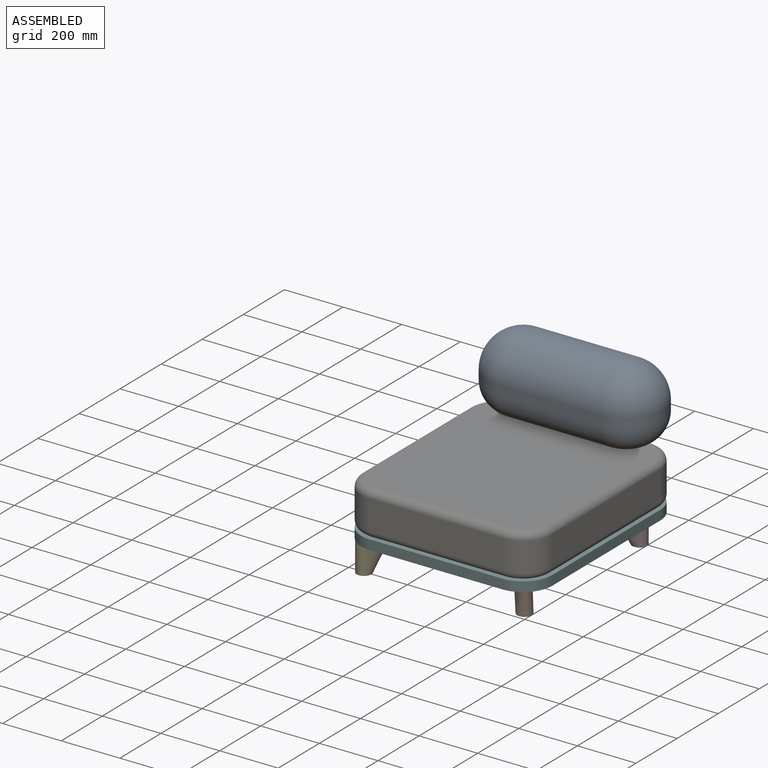
[diagram: assembled view]
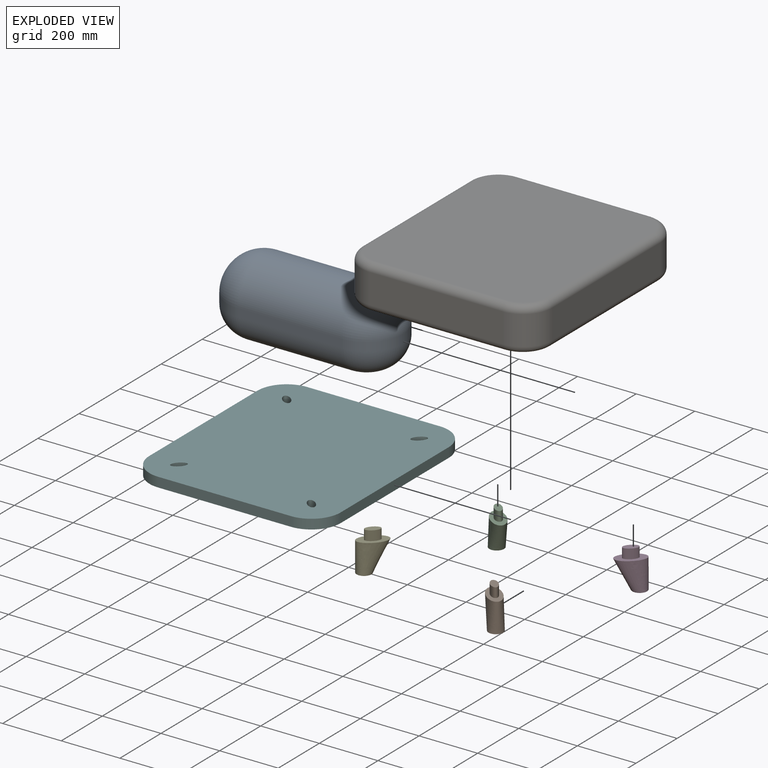
[diagram: exploded view]
GUIDED TOUR — FREECAD ASSEMBLY "Single Unit"

This assembly has 7 components, labeled P0..P6 below (a component is one placed body or linked part; the same part can appear more than once), held together by 6 modeled joints. A joint is a constraint between two components; its type names the relative motion it leaves free:
  FASTENED — locks the two components together rigidly (no relative motion).
Axis/direction vectors are unit vectors and 'through' points are millimeter coordinates, both in the assembly's world frame.

MATES
  1. FASTENED [Fixed] "Joint001": P6 <-> P0, direction (-1.000, 0.000, 0.000) through (326.00, -25.00, 183.00) mm
  2. FASTENED [Fixed] "Joint004": P2 <-> P5, direction (0.000, 0.000, 1.000) through (117.68, -117.68, 0.00) mm
  3. FASTENED [Fixed] "Joint": P6 <-> P5, direction (0.000, 0.000, 1.000) through (326.00, -362.50, 33.00) mm
  4. FASTENED [Fixed] "Joint005": P5 <-> P3, direction (0.000, 0.000, 1.000) through (534.32, -117.68, 0.00) mm
  5. FASTENED [Fixed] "Joint006": P5 <-> P4, direction (0.000, 0.000, 1.000) through (82.32, -642.68, 0.00) mm
  6. FASTENED [Fixed] "Joint007": P5 <-> P1, direction (0.000, 0.000, 1.000) through (534.32, -607.32, 0.00) mm

ASSEMBLY ORDER
  1. P4 — the base component [order verified]
  2. P2 [order verified]
  3. P3 [order verified]
  4. P5 [order verified]
  5. P1 [order verified]
  6. P6 [order verified]
  7. P0 [order verified]
Order-tag legend:
  [order verified] — this step's position reverses a verified removal order: the component was checked to insert without passing through the ones already placed.

Of the 7 components, 7 carry a construction recipe — the FreeCAD feature program (sketches with constraints, then the solid features that consume them) that regenerates the part from scratch, quoted from this document or from the linked companion document it references; the rest are supplied as boundary geometry only. The tour below walks the components in assembly order: each is shown spotlighted twice — in the assembled view, then in the exploded view, where a leader line traces a displaced component back to its assembled socket (components that stay in place when exploded have no leader line; saturated green if recipe-attached, orange if geometry-only; every other component desaturated gray) — followed by its recipe or geometry summary and the mates that hold it.
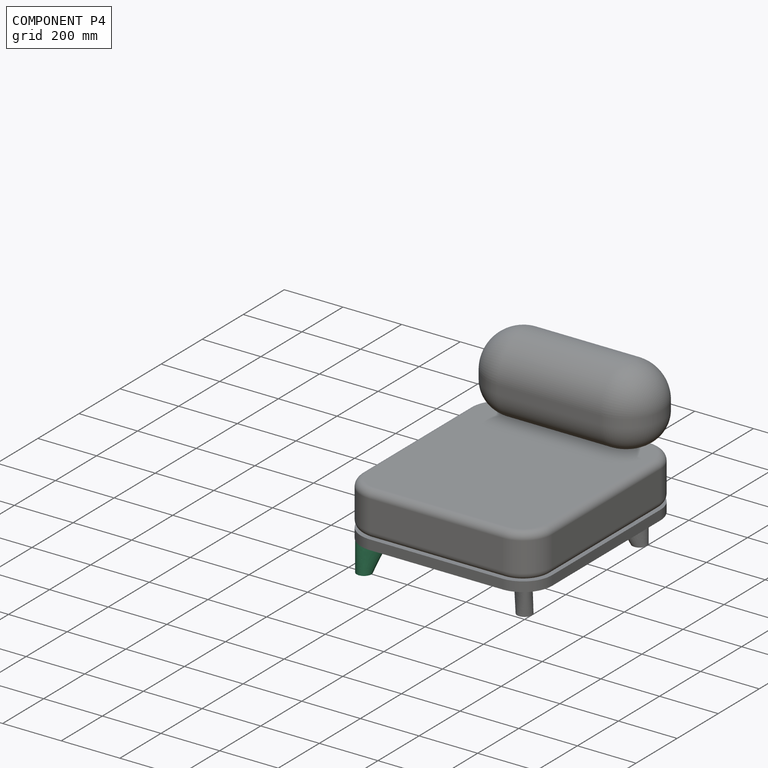
[diagram: component P4 — assembled]
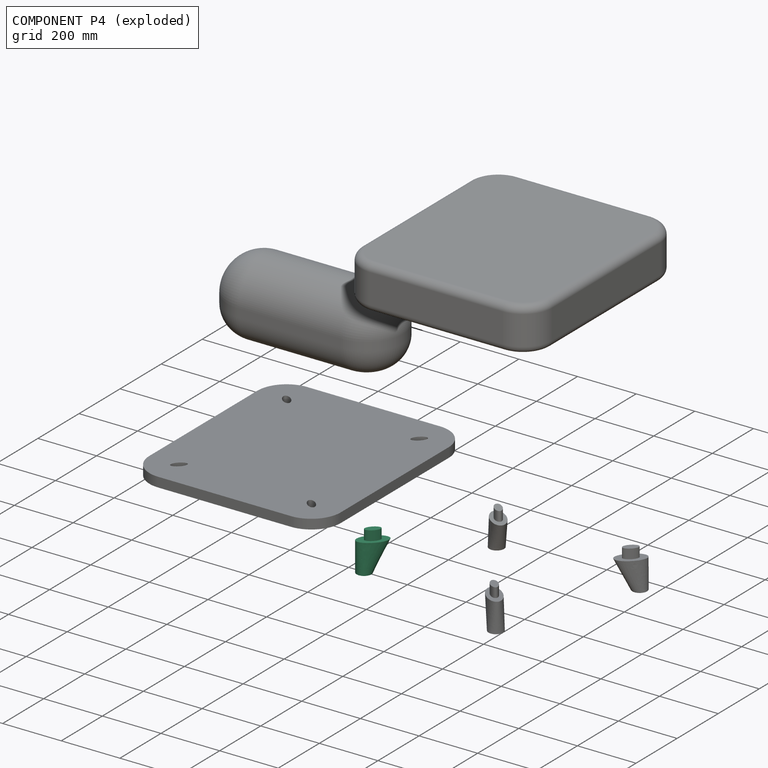
[diagram: component P4 — exploded]
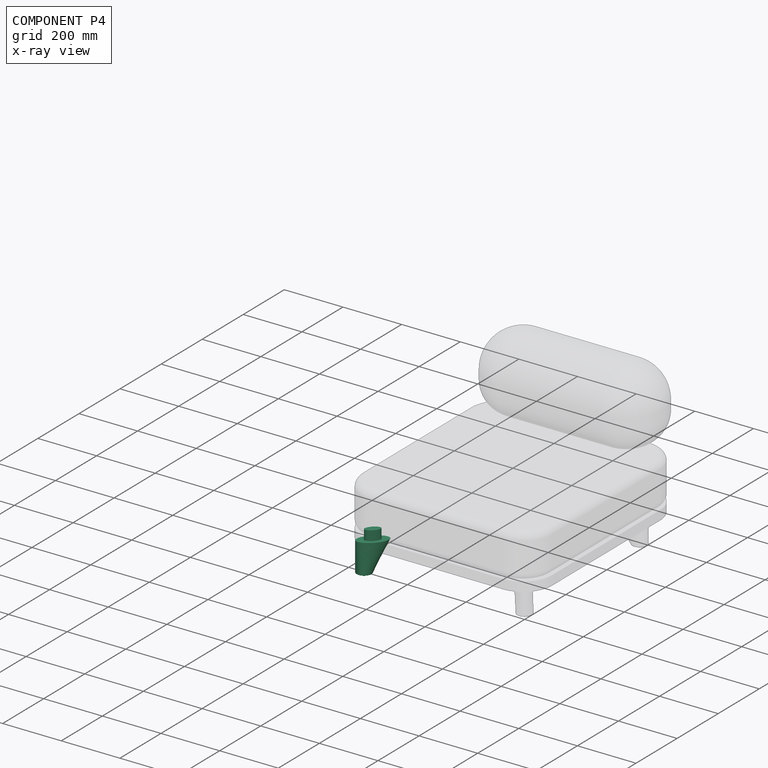
[diagram: component P4 — x-ray view]
COMPONENT P4 — same part as P0; its construction recipe is shown at P0.
Held by: FASTENED mate "Joint006" to P5.
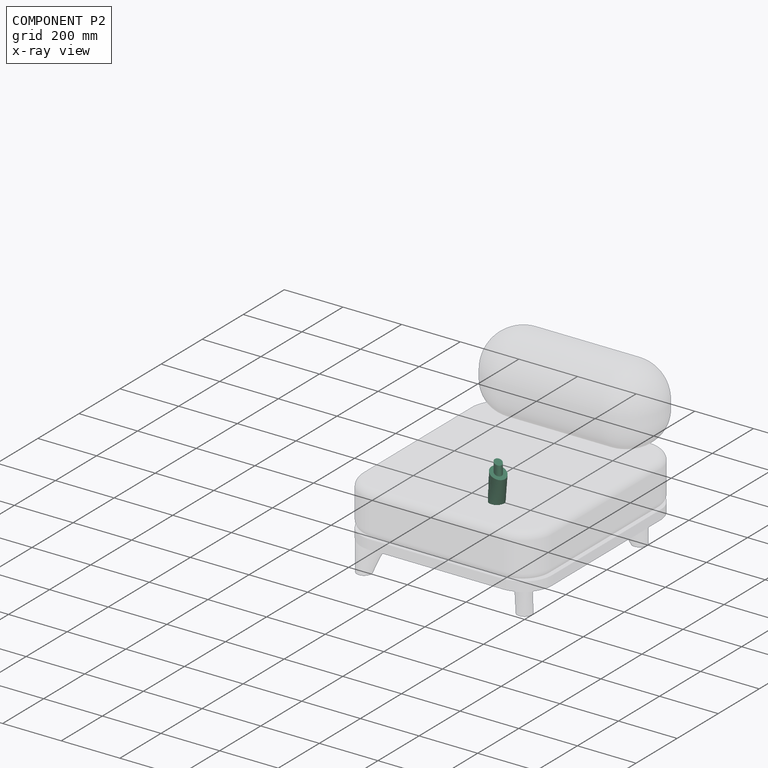
[diagram: component P2 — x-ray view]
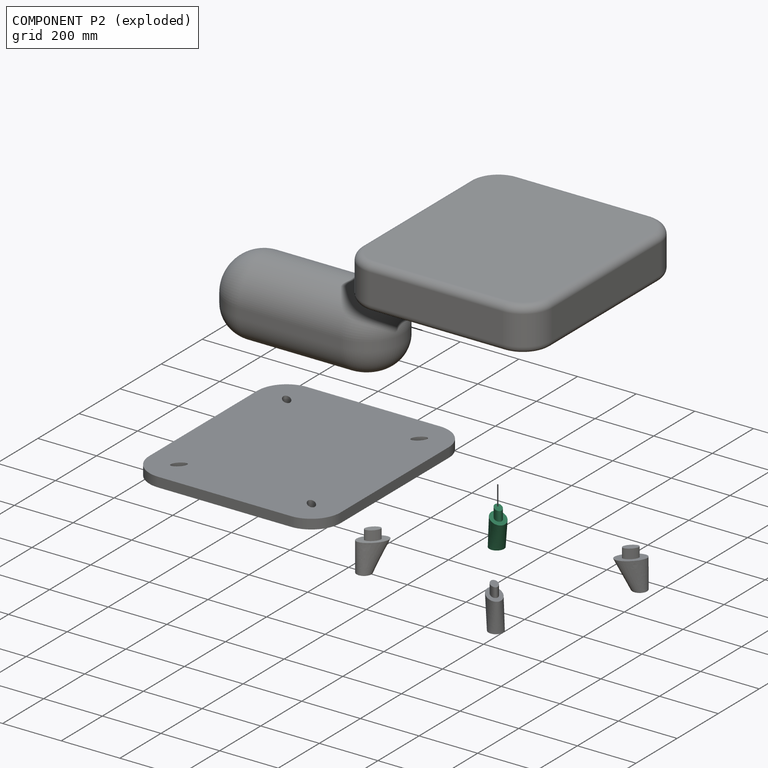
[diagram: component P2 — exploded]
COMPONENT P2 — same part as P0; its construction recipe is shown at P0.
Held by: FASTENED mate "Joint004" to P5.
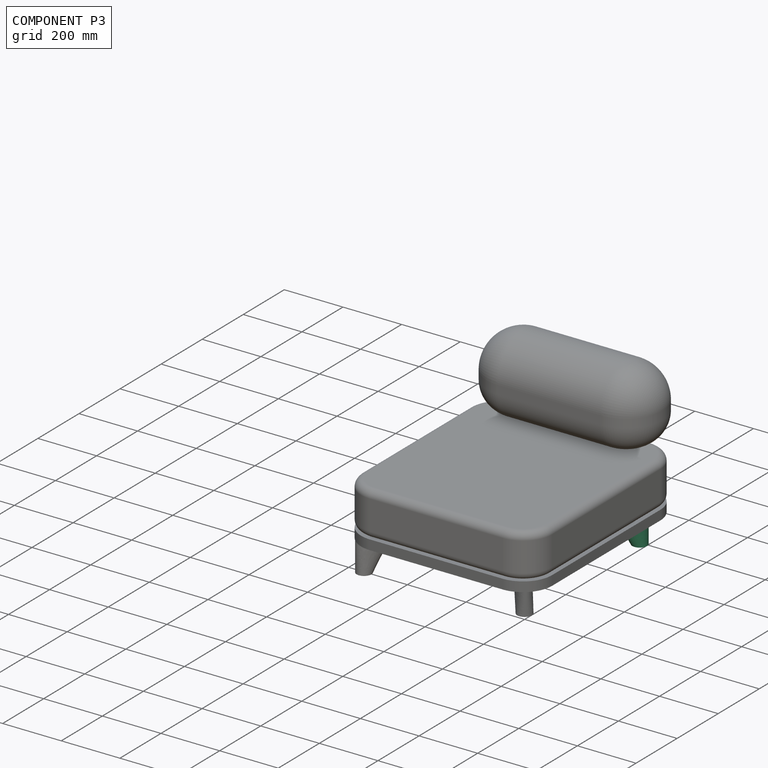
[diagram: component P3 — assembled]
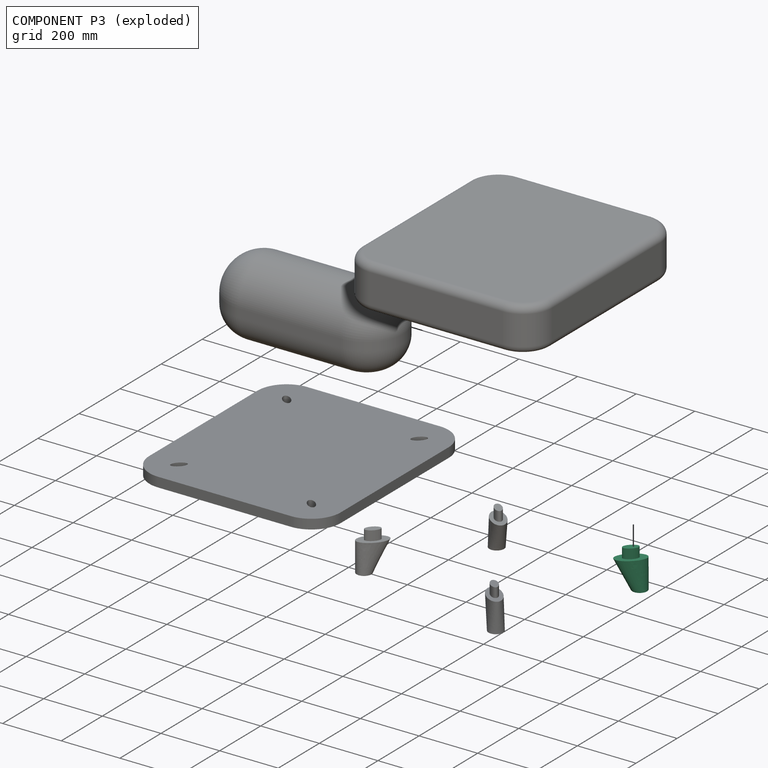
[diagram: component P3 — exploded]
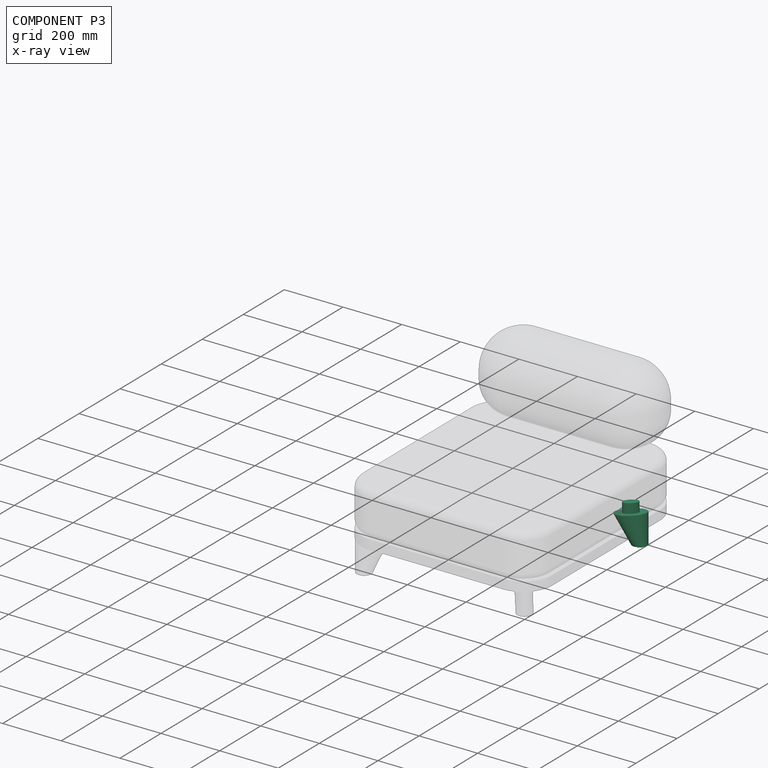
[diagram: component P3 — x-ray view]
COMPONENT P3 — same part as P0; its construction recipe is shown at P0.
Held by: FASTENED mate "Joint005" to P5.
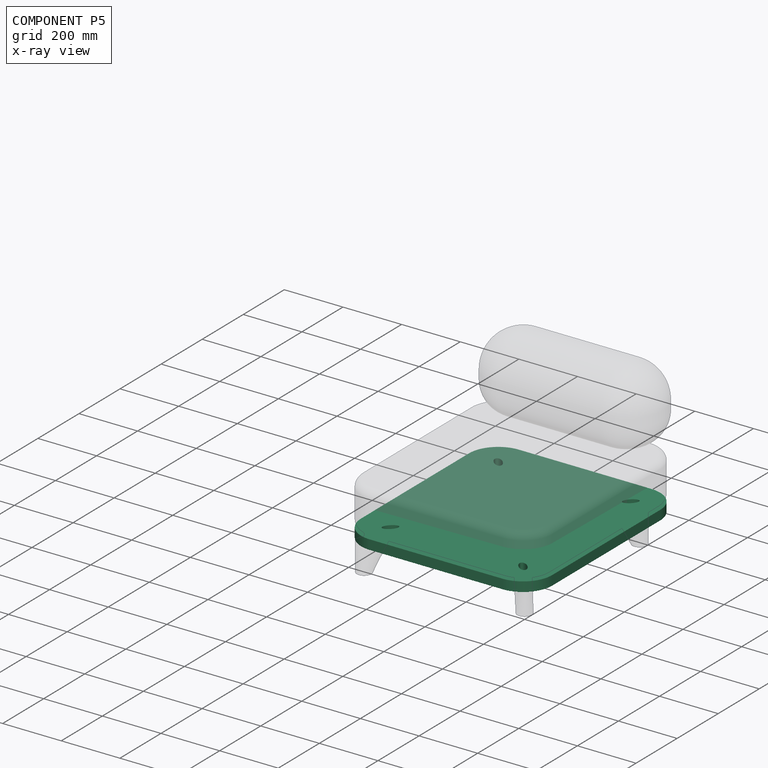
[diagram: component P5 — x-ray view]
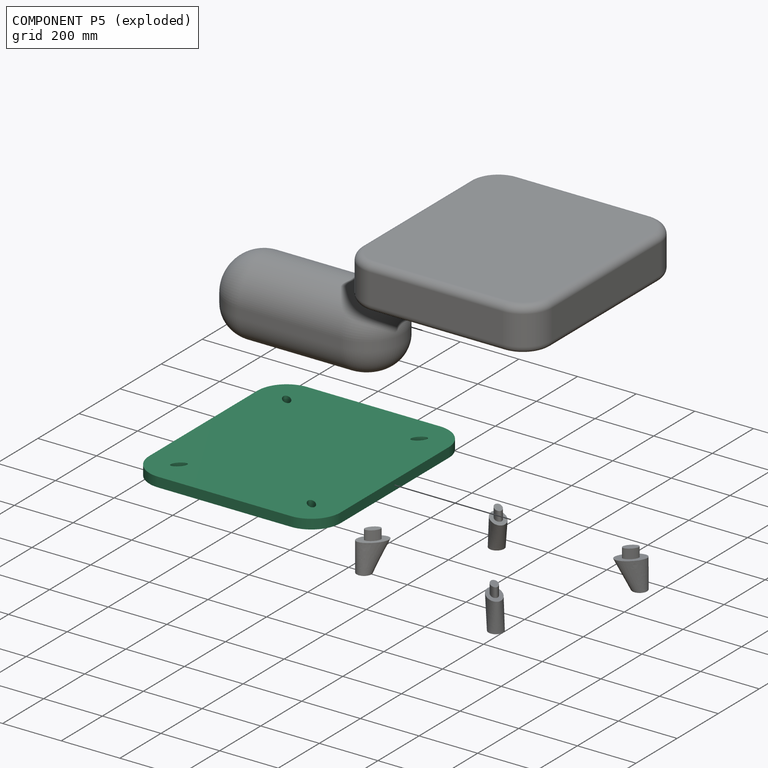
[diagram: component P5 — exploded]
COMPONENT P5 — same part as P0; its construction recipe is shown at P0.
Held by: FASTENED mate "Joint004" to P2; FASTENED mate "Joint" to P6; FASTENED mate "Joint005" to P3; FASTENED mate "Joint006" to P4; FASTENED mate "Joint007" to P1.
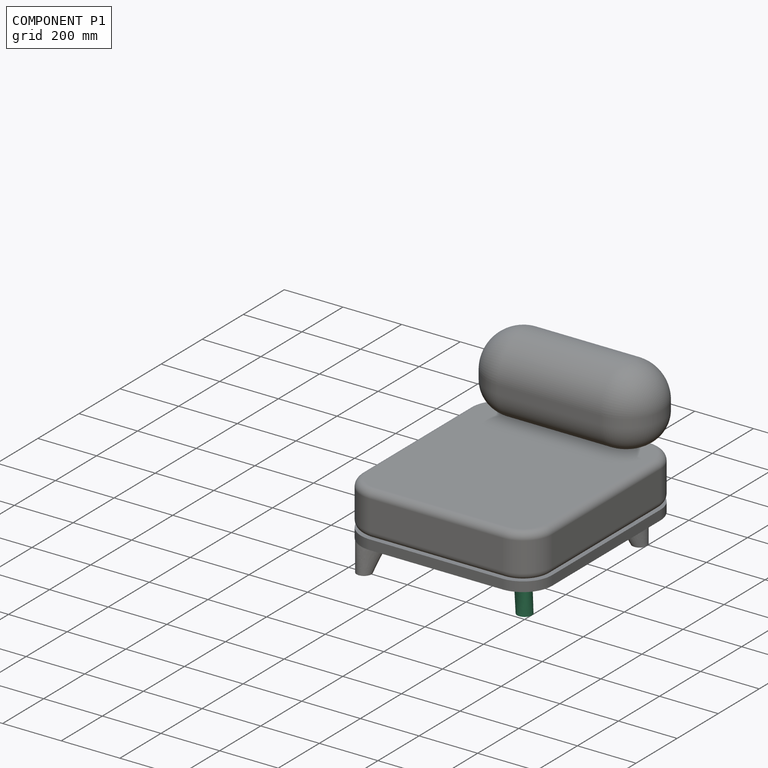
[diagram: component P1 — assembled]
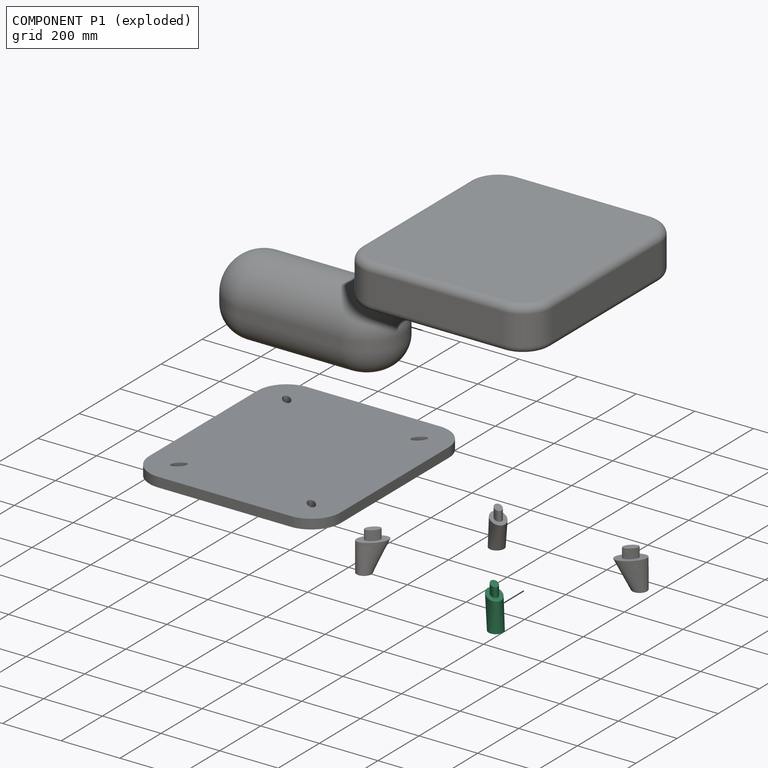
[diagram: component P1 — exploded]
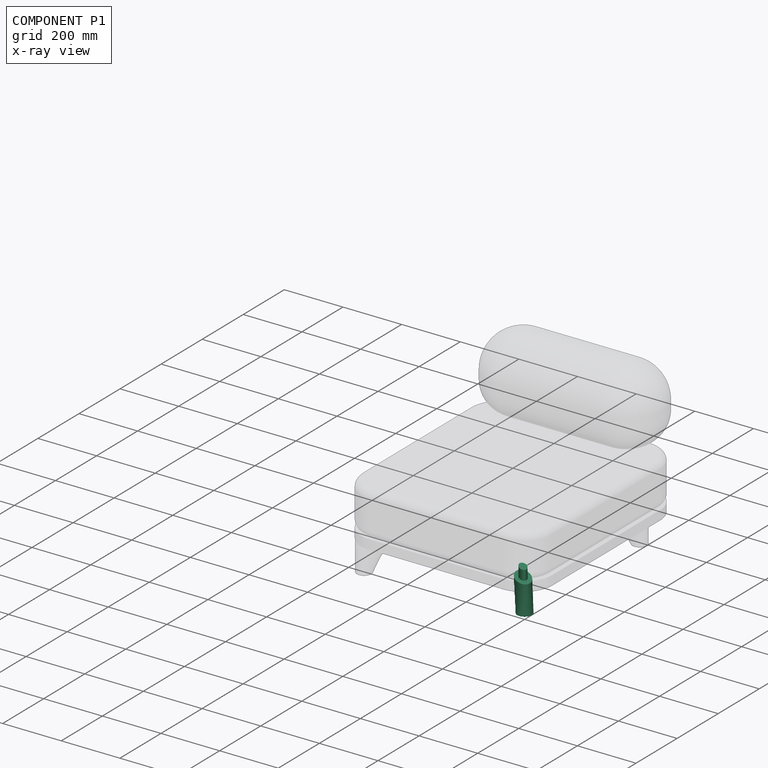
[diagram: component P1 — x-ray view]
COMPONENT P1 — same part as P0; its construction recipe is shown at P0.
Held by: FASTENED mate "Joint007" to P5.
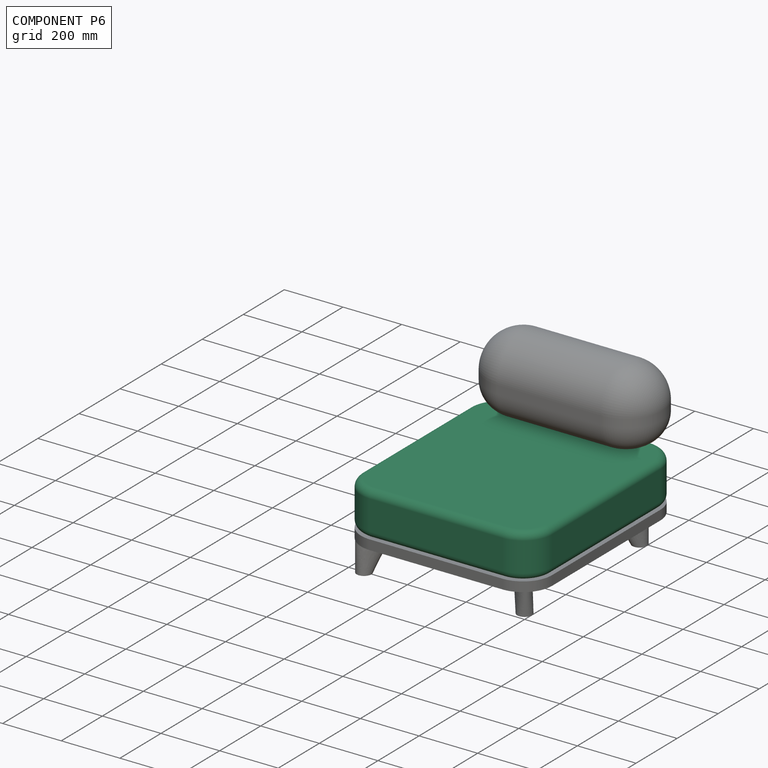
[diagram: component P6 — assembled]
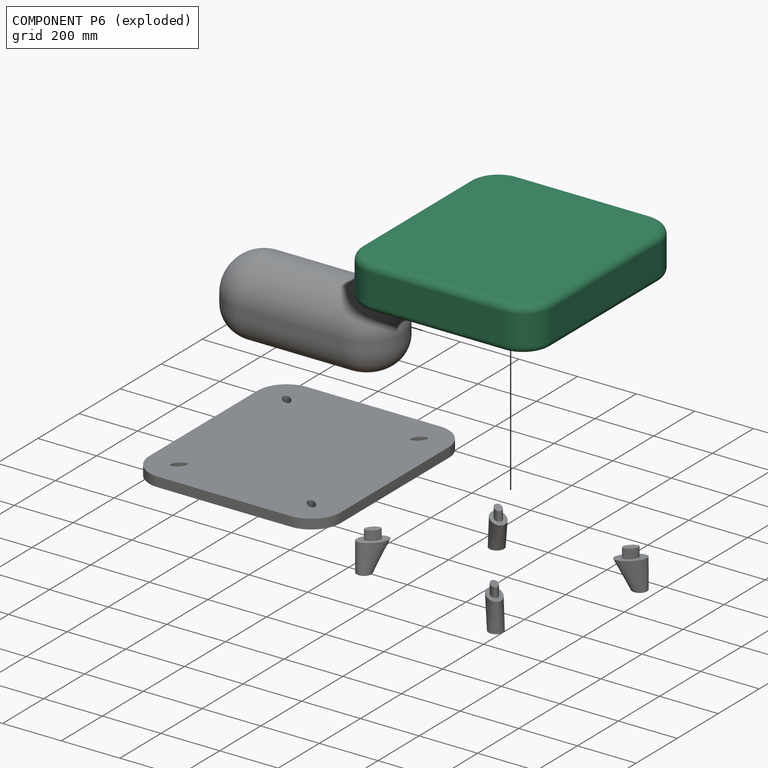
[diagram: component P6 — exploded]
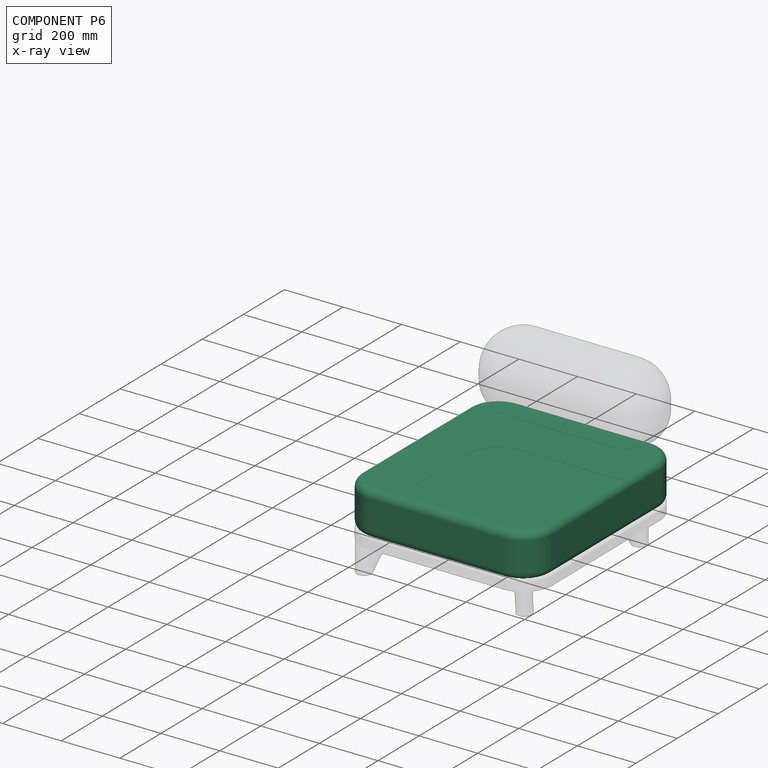
[diagram: component P6 — x-ray view]
COMPONENT P6 — same part as P0; its construction recipe is shown at P0.
Held by: FASTENED mate "Joint001" to P0; FASTENED mate "Joint" to P5.
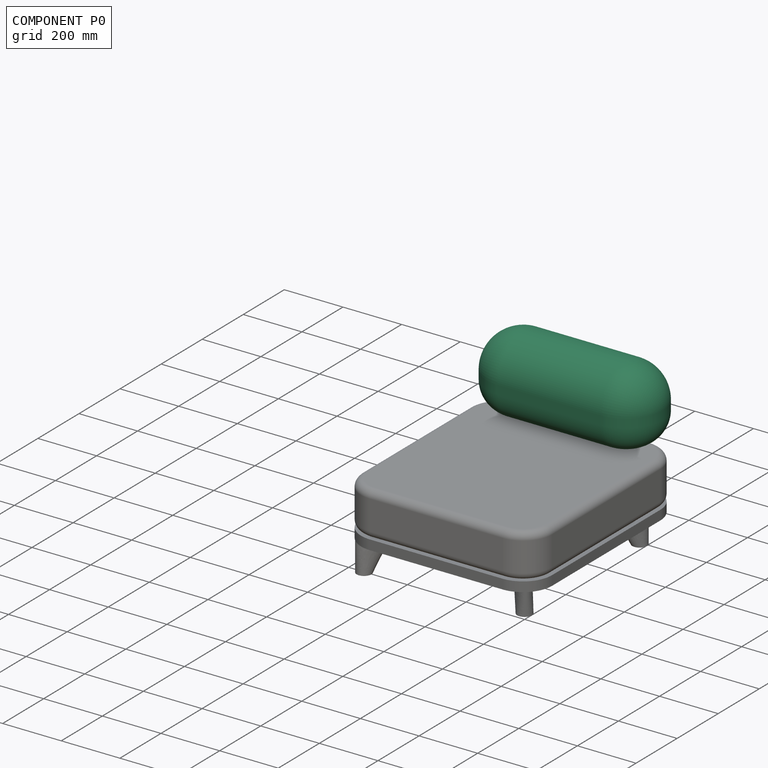
[diagram: component P0 — assembled]
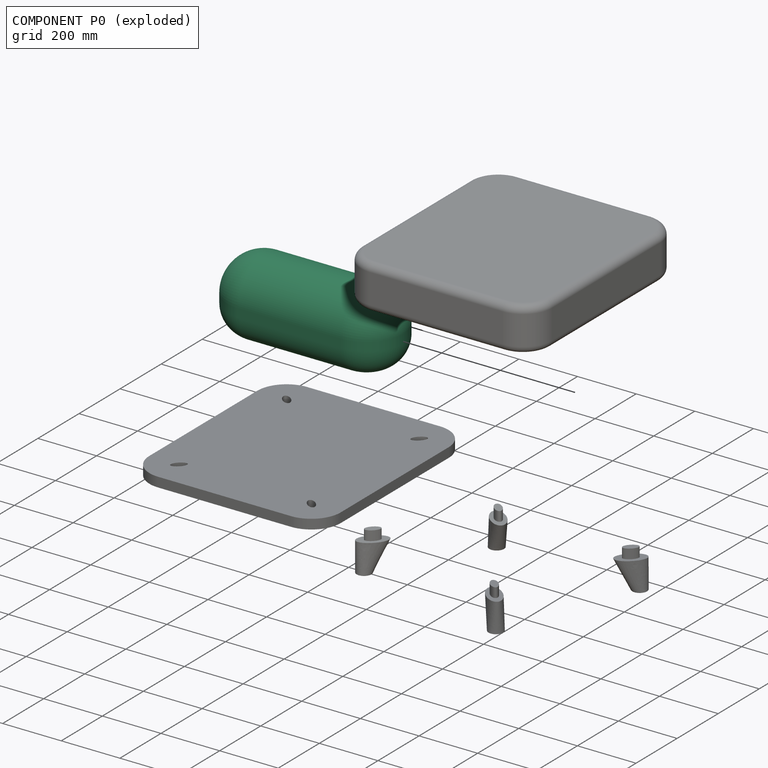
[diagram: component P0 — exploded]
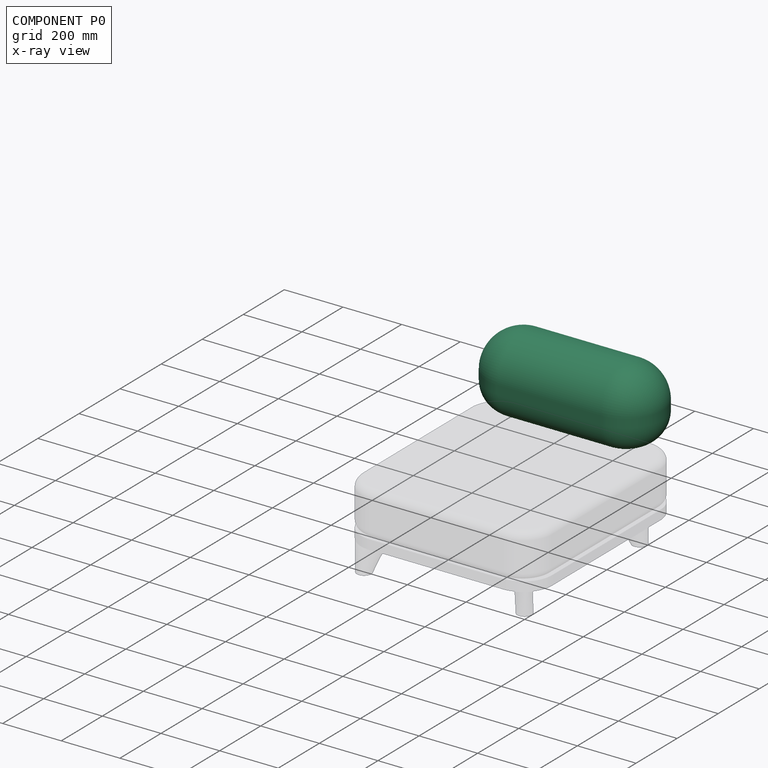
[diagram: component P0 — x-ray view]
COMPONENT P0 — recipe-attached ("Backrest", a linked part whose construction recipe lives in a companion FreeCAD document of the same project; that document's serialized recipe follows).
Held by: FASTENED mate "Joint001" to P6.
Construction recipe (the companion document, serialized — sketch geometry with constraints, then the solid features built on it; lengths are millimeters unless a unit is written):

FCSTD DOCUMENT  (FreeCAD 1.0R39319 (Git))
Label: Components
License: All rights reserved
objects: Sketcher::SketchObject×17, PartDesign::Pad×12, PartDesign::Body×10, PartDesign::Fillet×7, PartDesign::Pocket×3, PartDesign::Plane×1, App::VarSet×1, PartDesign::AdditiveLoft×1, PartDesign::SubShapeBinder×1
note: 115 computed .brp shape members not serialized (recipe doc carries the construction recipe); baked Part::Feature solids carry a one-line shape summary decoded from their .brp

FEATURE [Sketcher::SketchObject] Sketch
  ArcFitTolerance = 1e-06
  AttachmentSupport = -> [XY_Plane]
  FullyConstrained = true
  MakeInternals = false
  MapMode = 5
  expr: Constraints[21] = VarSet.depth - 2 * VarSet.corner_radious
  expr: Constraints[22] = VarSet.depth - 2 * VarSet.corner_radious
  expr: Constraints[23] = VarSet.singe_width / 2
  expr: Constraints[24] = VarSet.singe_width / 2
  expr: Constraints[27] = VarSet.depth
  expr: Constraints[41] = VarSet.corner_radious
  sketch-geometry (15):
    g0: ArcOfCircle CenterX=1322.94 CenterY=-100 CenterZ=0 NormalX=0 NormalY=0 NormalZ=1 AngleXU=0 Radius=100 StartAngle=1e-16 EndAngle=1.5708
    g1: LineSegment StartX=1422.94 StartY=-100 StartZ=0 EndX=1422.94 EndY=-625 EndZ=0
    g2: ArcOfCircle CenterX=1322.94 CenterY=-625 CenterZ=0 NormalX=0 NormalY=0 NormalZ=1 AngleXU=0 Radius=100 StartAngle=4.71239 EndAngle=6.28319
    g3: LineSegment StartX=1322.94 StartY=-725 StartZ=0 EndX=996.938 EndY=-725 EndZ=0
    g4: ArcOfCircle CenterX=996.938 CenterY=-825 CenterZ=0 NormalX=0 NormalY=0 NormalZ=1 AngleXU=0 Radius=100 StartAngle=1.5708 EndAngle=2.35619
    g5: LineSegment StartX=926.227 StartY=-754.289 StartZ=0 EndX=695.711 EndY=-984.806 EndZ=0
    g6: ArcOfCircle CenterX=625 CenterY=-914.095 CenterZ=0 NormalX=0 NormalY=0 NormalZ=1 AngleXU=0 Radius=100 StartAngle=4.71239 EndAngle=5.49779
    g7: ArcOfCircle CenterX=100 CenterY=-696.633 CenterZ=0 NormalX=0 NormalY=0 NormalZ=1 AngleXU=0 Radius=100 StartAngle=2.35619 EndAngle=3.14159
    g8: LineSegment StartX=29.2893 StartY=-625.923 StartZ=0 EndX=625.923 EndY=-29.2893 EndZ=0
    g9: ArcOfCircle CenterX=696.633 CenterY=-100 CenterZ=0 NormalX=0 NormalY=0 NormalZ=1 AngleXU=0 Radius=100 StartAngle=1.5708 EndAngle=2.35619
    g10: LineSegment StartX=1322.94 StartY=0 StartZ=0 EndX=696.633 EndY=0 EndZ=0
    g11: LineSegment StartX=625 StartY=-1014.1 StartZ=0 EndX=100 EndY=-1014.1 EndZ=0
    g12: ArcOfCircle CenterX=100 CenterY=-914.095 CenterZ=0 NormalX=0 NormalY=0 NormalZ=1 AngleXU=0 Radius=100 StartAngle=3.14159 EndAngle=4.71239
    g13: LineSegment StartX=0 StartY=-914.095 StartZ=0 EndX=0 EndY=-696.633 EndZ=0
    g14: LineSegment [constr] StartX=0 StartY=-655.212 StartZ=0 EndX=655.212 EndY=3.5e-15 EndZ=0
  constraints (42):
    c: Tangent(g0,g1) = 1.5708
    c: Tangent(g1,g2) = 1.5708
    c: Tangent(g2,g3) = 1.5708
    c: Tangent(g3,g4) = -1.5708
    c: Tangent(g4,g5) = -1.5708
    c: Tangent(g5,g6) = 1.5708
    c: Tangent(g7,g8) = 1.5708
    c: Tangent(g8,g9) = 1.5708
    c: Tangent(g10,g0) = -1.5708
    c: Tangent(g9,g10) = -1.5708
    c: Horizontal(g10)
    c: Vertical(g1)
    c: Horizontal(g3)
    c: Angle(g4) = 0.785398
    c: Parallel(g8,g5)
    c: Tangent(g6,g11) = 1.5708
    c: Tangent(g11,g12) = 1.5708
    c: Tangent(g12,g13) = 1.5708
    c: Vertical(g13)
    c: Horizontal(g11)
    c: Tangent(g7,g13) = 1.5708
    c: Distance(g1) = 525
    c: Distance(g11) = 525
    c: Distance(g3) = 326
    c: Distance(g5) = 326
    c: PointOnObject(g9,g-1)
    c: PointOnObject(g7,g-2)
    c: Distance(g4,g8) = 725
    c: PointOnObject(g14,g-2)
    c: PointOnObject(g14,g-1)
    c: PointOnObject(g14,g8)
    c: PointOnObject(g14,g8)
    c: Distance(g14,g-1) = 655.212
    c: Distance(g0,g-2) = 1422.94
    c: Distance(g11,g-1) = 1014.1
    c: Equal(g4,g2)
    c: Equal(g6,g4)
    c: Equal(g7,g6)
    c: Equal(g9,g7)
    c: Equal(g12,g2)
    c: Equal(g0,g2)
    c: Radius(g2) = 100
FEATURE [PartDesign::Pad] Pad
  Direction = (0,0,1)
  Length = 33
  Length2 = 10
  Profile = -> Sketch
  ReferenceAxis = -> Sketch [N_Axis]
  Refine = true
  Suppressed = false
  Type = 0
  expr: Length = VarSet.base_thickness
FEATURE [Sketcher::SketchObject] Sketch001
  ArcFitTolerance = 1e-06
  AttachmentSupport = -> [XY_Plane001]
  FullyConstrained = true
  MakeInternals = false
  MapMode = 5
  expr: Constraints[23] = VarSet.depth - 2 * VarSet.corner_radious
  expr: Constraints[24] = VarSet.singe_width / 2
  expr: Constraints[25] = VarSet.depth
  sketch-geometry (14):
    g0: LineSegment StartX=696.633 StartY=0 StartZ=0 EndX=1322.94 EndY=0 EndZ=0
    g1: ArcOfCircle CenterX=1322.94 CenterY=-100 CenterZ=0 NormalX=0 NormalY=0 NormalZ=1 AngleXU=0 Radius=100 StartAngle=2e-16 EndAngle=1.5708
    g2: LineSegment StartX=1422.94 StartY=-100 StartZ=0 EndX=1422.94 EndY=-625 EndZ=0
    g3: ArcOfCircle CenterX=1322.94 CenterY=-625 CenterZ=0 NormalX=0 NormalY=0 NormalZ=1 AngleXU=0 Radius=100 StartAngle=4.71239 EndAngle=6.28319
    g4: LineSegment StartX=1322.94 StartY=-725 StartZ=0 EndX=996.938 EndY=-725 EndZ=0
    g5: ArcOfCircle CenterX=996.938 CenterY=-825 CenterZ=0 NormalX=0 NormalY=0 NormalZ=1 AngleXU=0 Radius=100 StartAngle=1.5708 EndAngle=2.35619
    g6: LineSegment StartX=926.227 StartY=-754.289 StartZ=0 EndX=695.711 EndY=-984.806 EndZ=0
    g7: ArcOfCircle CenterX=625 CenterY=-914.095 CenterZ=0 NormalX=0 NormalY=0 NormalZ=1 AngleXU=0 Radius=100 StartAngle=4.71239 EndAngle=5.49779
    g8: LineSegment StartX=625 StartY=-1014.1 StartZ=0 EndX=100 EndY=-1014.1 EndZ=0
    g9: ArcOfCircle CenterX=100 CenterY=-914.095 CenterZ=0 NormalX=0 NormalY=0 NormalZ=1 AngleXU=0 Radius=100 StartAngle=3.14159 EndAngle=4.71239
    g10: LineSegment StartX=0 StartY=-914.095 StartZ=0 EndX=0 EndY=-696.633 EndZ=0
    g11: ArcOfCircle CenterX=100 CenterY=-696.633 CenterZ=0 NormalX=0 NormalY=0 NormalZ=1 AngleXU=0 Radius=100 StartAngle=2.35619 EndAngle=3.14159
    g12: LineSegment StartX=29.2893 StartY=-625.923 StartZ=0 EndX=625.923 EndY=-29.2893 EndZ=0
    g13: ArcOfCircle CenterX=696.633 CenterY=-100 CenterZ=0 NormalX=0 NormalY=0 NormalZ=1 AngleXU=0 Radius=100 StartAngle=1.5708 EndAngle=2.35619
  constraints (35):
    c: PointOnObject(g0,g-1)
    c: Horizontal(g0)
    c: Tangent(g0,g1) = 1.5708
    c: Tangent(g1,g2) = 1.5708
    c: Tangent(g2,g3) = 1.5708
    c: Tangent(g3,g4) = 1.5708
    c: Tangent(g4,g5) = -1.5708
    c: Tangent(g5,g6) = -1.5708
    c: Tangent(g6,g7) = 1.5708
    c: Tangent(g7,g8) = 1.5708
    c: Tangent(g8,g9) = 1.5708
    c: Tangent(g9,g10) = 1.5708
    c: Tangent(g10,g11) = 1.5708
    c: Tangent(g11,g12) = 1.5708
    c: Tangent(g12,g13) = 1.5708
    c: Tangent(g13,g0) = 1.5708
    c: Radius(g3) = 100
    c: Horizontal(g4)
    c: Vertical(g2)
    c: Vertical(g10)
    c: Horizontal(g8)
    c: Parallel(g12,g6)
    c: Angle(g5) = 0.785398
    c: Distance(g2) = 525
    c: Distance(g4) = 326
    c: Distance(g5,g12) = 725
    c: PointOnObject(g10,g-2)
    c: Equal(g8,g2)
    c: Equal(g4,g6)
    c: Equal(g3,g1)
    c: Equal(g3,g9)
    c: Equal(g3,g5)
    c: Equal(g5,g7)
    c: Equal(g7,g11)
    c: Equal(g11,g13)
FEATURE [PartDesign::Pad] Pad001
  Direction = (0,0,1)
  Length = 150
  Length2 = 10
  Profile = -> Sketch001
  ReferenceAxis = -> Sketch001 [N_Axis]
  Refine = true
  Suppressed = false
  Type = 0
  expr: Length = VarSet.cushion_thickness
FEATURE [PartDesign::Fillet] Fillet
  Base = -> Pad001
  BaseFeature = -> Pad001
  Radius = 25
  Refine = true
  SupportTransform = false
  Suppressed = false
  UseAllEdges = true
  expr: Radius = VarSet.cushion_fillet
FEATURE [PartDesign::Body] Body001  label="CornerCushion"
  AllowCompound = false
  Group = -> [Sketch001,Pad001,Fillet]
  Origin = -> Origin001
  Placement = pos=(0,0,50) rot=(0,0,1;0rad)
  Tip = -> Fillet
FEATURE [PartDesign::Fillet] Fillet001
  Base = -> Pad [?Face10]
  BaseFeature = -> Pad
  Radius = 16
  Refine = true
  SupportTransform = false
  Suppressed = false
  UseAllEdges = true
  expr: Radius = VarSet.base_fillet
FEATURE [Sketcher::SketchObject] Sketch002
  ArcFitTolerance = 1e-06
  AttachmentSupport = -> [YZ_Plane002]
  FullyConstrained = true
  MakeInternals = false
  MapMode = 5
  Placement = pos=(0,0,0) rot=(0.57735,0.57735,0.57735;2.0944rad)
  expr: Constraints[8] = VarSet.backrest_height - VarSet.backrest_width / 2
  expr: Constraints[9] = VarSet.backrest_width
  sketch-geometry (4):
    g0: LineSegment StartX=0 StartY=0 StartZ=0 EndX=-250 EndY=0 EndZ=0
    g1: LineSegment StartX=-250 StartY=0 StartZ=0 EndX=-250 EndY=130 EndZ=0
    g2: ArcOfCircle CenterX=-125 CenterY=130 CenterZ=0 NormalX=0 NormalY=0 NormalZ=1 AngleXU=0 Radius=125 StartAngle=2e-16 EndAngle=3.14159
    g3: LineSegment StartX=0 StartY=130 StartZ=0 EndX=0 EndY=0 EndZ=0
  constraints (10):
    c: Coincident(g-1,g0)
    c: PointOnObject(g0,g-1)
    c: Coincident(g0,g1)
    c: Vertical(g1)
    c: Tangent(g1,g2) = 1.5708
    c: PointOnObject(g2,g-2)
    c: Tangent(g2,g3) = 1.5708
    c: Coincident(g3,g0)
    c: Distance(g1) = 130
    c: Distance(g0) = 250
FEATURE [PartDesign::Pad] Pad002
  Direction = (1,0,0)
  Length = 600
  Length2 = 10
  Placement = pos=(0,0,0) rot=(1,1,1;2.0944rad)
  Profile = -> Sketch002
  ReferenceAxis = -> Sketch002 [N_Axis]
  Refine = true
  Suppressed = false
  Type = 0
  expr: Length = VarSet.backrest_length
FEATURE [PartDesign::Fillet] Fillet002
  Base = -> Pad002 [Edge10,Edge9]
  BaseFeature = -> Pad002
  Placement = pos=(0,0,0) rot=(1,1,1;2.0944rad)
  Radius = 124.5
  Refine = true
  SupportTransform = false
  Suppressed = false
  UseAllEdges = false
  expr: Radius = (VarSet.backrest_width - 1 mm) / 2
FEATURE [PartDesign::Fillet] Fillet003
  Base = -> Fillet002 [?Face1]
  BaseFeature = -> Fillet002
  Placement = pos=(0,0,0) rot=(1,1,1;2.0944rad)
  Radius = 100
  Refine = true
  SupportTransform = false
  Suppressed = false
  UseAllEdges = true
  expr: Radius = VarSet.backrest_fillet
FEATURE [PartDesign::Body] Body002  label="Backrest"
  AllowCompound = false
  Group = -> [Sketch002,Pad002,Fillet002,Fillet003]
  Origin = -> Origin002
  Placement = pos=(0,-100,200) rot=(0,0,1;0rad)
  Tip = -> Fillet003
FEATURE [Sketcher::SketchObject] Sketch003
  ArcFitTolerance = 1e-06
  AttachmentSupport = -> [XY_Plane003]
  FullyConstrained = true
  MakeInternals = false
  MapMode = 5
  expr: Constraints[4] = VarSet.leg_width
  expr: Constraints[6] = VarSet.leg_width / 2
  sketch-geometry (5):
    g0: Ellipse CenterX=0 CenterY=0 CenterZ=0 NormalX=0 NormalY=0 NormalZ=1 MajorRadius=50 MinorRadius=25 AngleXU=-2.35619
    g1: LineSegment [constr] StartX=-35.3553 StartY=-35.3553 StartZ=0 EndX=35.3553 EndY=35.3553 EndZ=0
    g2: LineSegment [constr] StartX=17.6777 StartY=-17.6777 StartZ=0 EndX=-17.6777 EndY=17.6777 EndZ=0
    g3: GeomPoint [constr] X=-30.6186 Y=-30.6186 Z=0
    g4: GeomPoint [constr] X=30.6186 Y=30.6186 Z=0
  constraints (5):
    c: InternalAlignment(g1-g4 -> g0) x4
    c: Distance(g0,g1) = 50
    c: Angle(g1) = 0.785398
    c: Distance(g0,g2) = 25
    c: Coincident(g0,g-1)
FEATURE [PartDesign::Plane] DatumPlane
  AttachmentOffset = pos=(0,0,-100) rot=(0,0,1;0rad)
  AttachmentSupport = -> [Sketch003]
  Length = 98.636
  MapMode = 2
  Placement = pos=(0,0,-100) rot=(0,0,1;0rad)
  ResizeMode = 0
  Width = 98.6418
  expr: .AttachmentOffset.Base.z = -VarSet.leg_height
FEATURE [Sketcher::SketchObject] Sketch004
  ArcFitTolerance = 1e-06
  AttachmentSupport = -> [DatumPlane]
  FullyConstrained = true
  MakeInternals = false
  MapMode = 5
  Placement = pos=(0,0,-100) rot=(0,0,1;0rad)
  expr: Constraints[0] = VarSet.leg_width
  sketch-geometry (2):
    g0: Circle CenterX=-17.6777 CenterY=-17.6777 CenterZ=0 NormalX=0 NormalY=0 NormalZ=1 AngleXU=0 Radius=25
    g1: LineSegment [constr] StartX=-17.6777 StartY=-17.6777 StartZ=0 EndX=2.4e-15 EndY=4.5e-15 EndZ=0
  constraints (5):
    c: Diameter(g0) = 50
    c: Coincident(g1,g0)
    c: Coincident(g1,g-1)
    c: Angle(g1,g-1) = 2.35619
    c: PointOnObject(g1,g0)
FEATURE [App::VarSet] VarSet
  backrest_fillet = 100
  backrest_height = 255
  backrest_length = 600
  backrest_width = 250
  base_fillet = 16
  base_thickness = 33
  corner_radious = 100
  cushion_fillet = 25
  cushion_thickness = 150
  depth = 725
  leg_height = 100
  leg_width = 50
  singe_width = 652
  spacer_width = 222
FEATURE [Sketcher::SketchObject] Sketch005
  ArcFitTolerance = 1e-06
  AttachmentSupport = -> [XY_Plane006]
  FullyConstrained = true
  MakeInternals = false
  MapMode = 5
  expr: Constraints[19] = VarSet.singe_width
  expr: Constraints[20] = VarSet.depth
  expr: Constraints[21] = VarSet.corner_radious
  sketch-geometry (10):
    g0: LineSegment StartX=0 StartY=-100 StartZ=0 EndX=0 EndY=-625 EndZ=0
    g1: LineSegment StartX=100 StartY=-725 StartZ=0 EndX=552 EndY=-725 EndZ=0
    g2: LineSegment StartX=652 StartY=-625 StartZ=0 EndX=652 EndY=-100 EndZ=0
    g3: LineSegment StartX=552 StartY=0 StartZ=0 EndX=100 EndY=0 EndZ=0
    g4: ArcOfCircle CenterX=100 CenterY=-100 CenterZ=0 NormalX=0 NormalY=0 NormalZ=1 AngleXU=0 Radius=100 StartAngle=1.5708 EndAngle=3.14159
    g5: ArcOfCircle CenterX=100 CenterY=-625 CenterZ=0 NormalX=0 NormalY=0 NormalZ=1 AngleXU=0 Radius=100 StartAngle=3.14159 EndAngle=4.71239
    g6: ArcOfCircle CenterX=552 CenterY=-625 CenterZ=0 NormalX=0 NormalY=0 NormalZ=1 AngleXU=0 Radius=100 StartAngle=4.71239 EndAngle=6.28319
    g7: ArcOfCircle CenterX=552 CenterY=-100 CenterZ=0 NormalX=0 NormalY=0 NormalZ=1 AngleXU=0 Radius=100 StartAngle=0 EndAngle=1.5708
    g8: GeomPoint [constr] X=0 Y=0 Z=0
    g9: GeomPoint [constr] X=652 Y=-725 Z=0
  constraints (23):
    c: Tangent(g0,g4) = -1.5708
    c: Tangent(g0,g5) = -1.5708
    c: Tangent(g1,g5) = -1.5708
    c: Tangent(g1,g6) = -1.5708
    c: Tangent(g2,g6) = -1.5708
    c: Tangent(g2,g7) = -1.5708
    c: Tangent(g3,g7) = -1.5708
    c: Tangent(g3,g4) = -1.5708
    c: Vertical(g0)
    c: Vertical(g2)
    c: Horizontal(g1)
    c: Horizontal(g3)
    c: Equal(g4,g5)
    c: Equal(g5,g6)
    c: Equal(g6,g7)
    c: PointOnObject(g8,g0)
    c: PointOnObject(g8,g3)
    c: PointOnObject(g9,g1)
    c: PointOnObject(g9,g2)
    c: Distance(g0,g2) = 652
    c: Distance(g1,g3) = 725
    c: Radius(g5) = 100
    c: Coincident(g8,g-1)
FEATURE [Sketcher::SketchObject] Sketch006
  ArcFitTolerance = 1e-06
  AttachmentSupport = -> [XY_Plane007]
  FullyConstrained = true
  MakeInternals = false
  MapMode = 5
  expr: Constraints[19] = VarSet.singe_width
  expr: Constraints[20] = VarSet.depth
  expr: Constraints[21] = VarSet.corner_radious
  sketch-geometry (10):
    g0: LineSegment StartX=0 StartY=-100 StartZ=0 EndX=0 EndY=-625 EndZ=0
    g1: LineSegment StartX=100 StartY=-725 StartZ=0 EndX=552 EndY=-725 EndZ=0
    g2: LineSegment StartX=652 StartY=-625 StartZ=0 EndX=652 EndY=-100 EndZ=0
    g3: LineSegment StartX=552 StartY=0 StartZ=0 EndX=100 EndY=0 EndZ=0
    g4: ArcOfCircle CenterX=100 CenterY=-100 CenterZ=0 NormalX=0 NormalY=0 NormalZ=1 AngleXU=0 Radius=100 StartAngle=1.5708 EndAngle=3.14159
    g5: ArcOfCircle CenterX=100 CenterY=-625 CenterZ=0 NormalX=0 NormalY=0 NormalZ=1 AngleXU=0 Radius=100 StartAngle=3.14159 EndAngle=4.71239
    g6: ArcOfCircle CenterX=552 CenterY=-625 CenterZ=0 NormalX=0 NormalY=0 NormalZ=1 AngleXU=0 Radius=100 StartAngle=4.71239 EndAngle=6.28319
    g7: ArcOfCircle CenterX=552 CenterY=-100 CenterZ=0 NormalX=0 NormalY=0 NormalZ=1 AngleXU=0 Radius=100 StartAngle=0 EndAngle=1.5708
    g8: GeomPoint [constr] X=0 Y=0 Z=0
    g9: GeomPoint [constr] X=652 Y=-725 Z=0
  constraints (23):
    c: Tangent(g0,g4) = -1.5708
    c: Tangent(g0,g5) = -1.5708
    c: Tangent(g1,g5) = -1.5708
    c: Tangent(g1,g6) = -1.5708
    c: Tangent(g2,g6) = -1.5708
    c: Tangent(g2,g7) = -1.5708
    c: Tangent(g3,g7) = -1.5708
    c: Tangent(g3,g4) = -1.5708
    c: Vertical(g0)
    c: Vertical(g2)
    c: Horizontal(g1)
    c: Horizontal(g3)
    c: Equal(g4,g5)
    c: Equal(g5,g6)
    c: Equal(g6,g7)
    c: PointOnObject(g8,g0)
    c: PointOnObject(g8,g3)
    c: PointOnObject(g9,g1)
    c: PointOnObject(g9,g2)
    c: Distance(g0,g2) = 652
    c: Distance(g1,g3) = 725
    c: Radius(g5) = 100
    c: Coincident(g8,g-1)
FEATURE [Sketcher::SketchObject] Sketch007
  ArcFitTolerance = 1e-06
  AttachmentSupport = -> [XY_Plane013]
  FullyConstrained = true
  MakeInternals = false
  MapMode = 5
  expr: Constraints[12] = VarSet.depth * 2 - VarSet.singe_width / 2
  expr: Constraints[13] = VarSet.singe_width
  expr: Constraints[8] = VarSet.corner_radious
  sketch-geometry (6):
    g0: LineSegment StartX=100 StartY=0 StartZ=0 EndX=552 EndY=0 EndZ=0
    g1: ArcOfCircle CenterX=552 CenterY=-100 CenterZ=0 NormalX=0 NormalY=0 NormalZ=1 AngleXU=0 Radius=100 StartAngle=2e-16 EndAngle=1.5708
    g2: LineSegment StartX=652 StartY=-100 StartZ=0 EndX=652 EndY=-1124 EndZ=0
    g3: ArcOfCircle CenterX=326 CenterY=-1124 CenterZ=0 NormalX=0 NormalY=0 NormalZ=1 AngleXU=0 Radius=326 StartAngle=3.14159 EndAngle=6.28319
    g4: LineSegment StartX=0 StartY=-1124 StartZ=0 EndX=0 EndY=-100 EndZ=0
    g5: ArcOfCircle CenterX=100 CenterY=-100 CenterZ=0 NormalX=0 NormalY=0 NormalZ=1 AngleXU=0 Radius=100 StartAngle=1.5708 EndAngle=3.14159
  constraints (15):
    c: PointOnObject(g0,g-1)
    c: Horizontal(g0)
    c: Tangent(g0,g1) = 1.5708
    c: Tangent(g1,g2) = 1.5708
    c: Tangent(g2,g3) = 1.5708
    c: PointOnObject(g3,g-2)
    c: Tangent(g3,g4) = 1.5708
    c: Tangent(g4,g5) = 1.5708
    c: Radius(g5) = 100
    c: Vertical(g4)
    c: Vertical(g2)
    c: Tangent(g5,g0) = 1.5708
    c: DistanceY(g2,g0) = 1124
    c: Distance(g4,g1) = 652
    c: Equal(g1,g5)
FEATURE [Sketcher::SketchObject] Sketch008
  ArcFitTolerance = 1e-06
  AttachmentSupport = -> [XY_Plane014]
  FullyConstrained = true
  MakeInternals = false
  MapMode = 5
  expr: Constraints[15] = VarSet.depth * 2 - VarSet.singe_width / 2
  expr: Constraints[9] = VarSet.singe_width
  sketch-geometry (7):
    g0: LineSegment StartX=0 StartY=-100 StartZ=0 EndX=0 EndY=-1124 EndZ=0
    g1: LineSegment StartX=652 StartY=-1124 StartZ=0 EndX=652 EndY=-100 EndZ=0
    g2: LineSegment StartX=552 StartY=0 StartZ=0 EndX=100 EndY=0 EndZ=0
    g3: ArcOfCircle CenterX=100 CenterY=-100 CenterZ=0 NormalX=0 NormalY=0 NormalZ=1 AngleXU=0 Radius=100 StartAngle=1.5708 EndAngle=3.14159
    g4: ArcOfCircle CenterX=552 CenterY=-100 CenterZ=0 NormalX=0 NormalY=0 NormalZ=1 AngleXU=0 Radius=100 StartAngle=0 EndAngle=1.5708
    g5: GeomPoint [constr] X=0 Y=0 Z=0
    g6: ArcOfCircle CenterX=326 CenterY=-1124 CenterZ=0 NormalX=0 NormalY=0 NormalZ=1 AngleXU=0 Radius=326 StartAngle=3.14159 EndAngle=6.28319
  constraints (16):
    c: Tangent(g0,g3) = -1.5708
    c: Tangent(g1,g4) = -1.5708
    c: Tangent(g2,g4) = -1.5708
    c: Tangent(g2,g3) = -1.5708
    c: Vertical(g0)
    c: Vertical(g1)
    c: Horizontal(g2)
    c: PointOnObject(g5,g0)
    c: PointOnObject(g5,g2)
    c: Distance(g0,g1) = 652
    c: Coincident(g5,g-1)
    c: Tangent(g6,g1) = -1.5708
    c: Tangent(g6,g0) = -1.5708
    c: Radius(g4) = 100
    c: Radius(g3) = 100
    c: DistanceY(g1,g2) = 1124
FEATURE [PartDesign::Pad] Pad006
  Direction = (0,0,1)
  Length = 150
  Length2 = 10
  Profile = -> Sketch008
  ReferenceAxis = -> Sketch008 [N_Axis]
  Refine = true
  Suppressed = false
  Type = 0
  expr: Length = VarSet.cushion_thickness
FEATURE [PartDesign::Pad] Pad003
  Direction = (0,0,1)
  Length = 33
  Length2 = 10
  Profile = -> Sketch005
  ReferenceAxis = -> Sketch005 [N_Axis]
  Refine = true
  Suppressed = false
  Type = 0
  expr: Length = VarSet.base_thickness
FEATURE [PartDesign::Pad] Pad004
  Direction = (0,0,1)
  Length = 150
  Length2 = 10
  Profile = -> Sketch006
  ReferenceAxis = -> Sketch006 [N_Axis]
  Refine = true
  Suppressed = false
  Type = 0
  expr: Length = VarSet.cushion_thickness
FEATURE [PartDesign::Fillet] Fillet004
  Base = -> Pad004 [Edge16,Edge19,Edge22,Edge24,Edge4,Edge7,Edge10,Edge13,Edge21,Edge23,Edge3,Edge6,Edge9,Edge12,Edge15,Edge18]
  BaseFeature = -> Pad004
  Radius = 25
  Refine = true
  SupportTransform = false
  Suppressed = false
  UseAllEdges = false
  expr: Radius = VarSet.cushion_fillet
FEATURE [PartDesign::Body] Body005  label="SingleCushion"
  AllowCompound = false
  Group = -> [Sketch006,Pad004,Fillet004]
  Origin = -> Origin007
  Placement = pos=(0,0,50) rot=(0,0,1;0rad)
  Tip = -> Fillet004
FEATURE [PartDesign::Pad] Pad005
  Direction = (0,0,1)
  Length = 33
  Length2 = 10
  Profile = -> Sketch007
  ReferenceAxis = -> Sketch007 [N_Axis]
  Refine = true
  Suppressed = false
  Type = 0
  expr: Length = VarSet.base_thickness
FEATURE [PartDesign::Fillet] Fillet007
  Base = -> Pad005 [?Face10]
  BaseFeature = -> Pad005
  Radius = 16
  Refine = true
  SupportTransform = false
  Suppressed = false
  UseAllEdges = true
  expr: Radius = VarSet.base_fillet
FEATURE [PartDesign::AdditiveLoft] AdditiveLoft
  Closed = false
  Placement = pos=(0,0,-100) rot=(0,0,1;0rad)
  Profile = -> Sketch004
  Refine = true
  Ruled = false
  Sections = -> [Sketch003]
  Suppressed = false
FEATURE [Sketcher::SketchObject] Sketch009
  ArcFitTolerance = 1e-06
  AttachmentSupport = -> [AdditiveLoft]
  FullyConstrained = true
  MakeInternals = false
  MapMode = 5
  Placement = pos=(0,0,1.42e-14) rot=(0,0,1;0rad)
  expr: Constraints[4] = VarSet.leg_width / 2
  expr: Constraints[6] = VarSet.leg_width / 4
  sketch-geometry (5):
    g0: Ellipse CenterX=0 CenterY=0 CenterZ=0 NormalX=0 NormalY=0 NormalZ=1 MajorRadius=25 MinorRadius=12.5 AngleXU=0.785399
    g1: LineSegment [constr] StartX=17.6777 StartY=17.6777 StartZ=0 EndX=-17.6777 EndY=-17.6777 EndZ=0
    g2: LineSegment [constr] StartX=-8.83884 StartY=8.83883 StartZ=0 EndX=8.83884 EndY=-8.83883 EndZ=0
    g3: GeomPoint [constr] X=15.3093 Y=15.3093 Z=0
    g4: GeomPoint [constr] X=-15.3093 Y=-15.3093 Z=0
  constraints (5):
    c: InternalAlignment(g1-g4 -> g0) x4
    c: Distance(g0,g1) = 25
    c: Angle(g1) = -2.35619
    c: Distance(g0,g2) = 12.5
    c: Coincident(g0,g-1)
FEATURE [PartDesign::Pad] Pad007
  BaseFeature = -> AdditiveLoft
  Direction = (0,0,1)
  Length = 33
  Length2 = 10
  Placement = pos=(0,0,-100) rot=(0,0,1;0rad)
  Profile = -> Sketch009
  ReferenceAxis = -> Sketch009 [N_Axis]
  Refine = true
  Suppressed = false
  Type = 0
  expr: Length = VarSet.base_thickness
FEATURE [PartDesign::Body] Body003  label="Legs"
  AllowCompound = false
  Group = -> [Sketch003,DatumPlane,Sketch004,AdditiveLoft,Sketch009,Pad007]
  Origin = -> Origin003
  Placement = pos=(100,-100,0) rot=(0,0,1;-1.5708rad)
  Tip = -> Pad007
FEATURE [Sketcher::SketchObject] Sketch010
  ArcFitTolerance = 1e-06
  AttachmentSupport = -> [Pad003]
  ExternalGeometry = -> [Pad003]
  FullyConstrained = true
  MakeInternals = false
  MapMode = 5
  Placement = pos=(0,0,0) rot=(1,0,0;3.14159rad)
  sketch-geometry (20):
    g0: Ellipse CenterX=100 CenterY=625 CenterZ=0 NormalX=0 NormalY=0 NormalZ=1 MajorRadius=25 MinorRadius=12.5 AngleXU=2.35619
    g1: LineSegment [constr] StartX=82.3223 StartY=642.678 StartZ=0 EndX=117.678 EndY=607.322 EndZ=0
    g2: LineSegment [constr] StartX=91.1612 StartY=616.161 StartZ=0 EndX=108.839 EndY=633.839 EndZ=0
    g3: GeomPoint [constr] X=84.6907 Y=640.309 Z=0
    g4: GeomPoint [constr] X=115.309 Y=609.691 Z=0
    g5: Ellipse CenterX=552 CenterY=625 CenterZ=0 NormalX=0 NormalY=0 NormalZ=1 MajorRadius=25 MinorRadius=12.5 AngleXU=-2.35619
    g6: LineSegment [constr] StartX=534.322 StartY=607.322 StartZ=0 EndX=569.678 EndY=642.678 EndZ=0
    g7: LineSegment [constr] StartX=560.839 StartY=616.161 StartZ=0 EndX=543.161 EndY=633.839 EndZ=0
    g8: GeomPoint [constr] X=536.691 Y=609.691 Z=0
    g9: GeomPoint [constr] X=567.309 Y=640.309 Z=0
    g10: Ellipse CenterX=552 CenterY=100 CenterZ=0 NormalX=0 NormalY=0 NormalZ=1 MajorRadius=25 MinorRadius=12.5 AngleXU=2.35619
    g11: LineSegment [constr] StartX=534.322 StartY=117.678 StartZ=0 EndX=569.678 EndY=82.3223 EndZ=0
    g12: LineSegment [constr] StartX=543.161 StartY=91.1612 StartZ=0 EndX=560.839 EndY=108.839 EndZ=0
    g13: GeomPoint [constr] X=536.691 Y=115.309 Z=0
    g14: GeomPoint [constr] X=567.309 Y=84.6907 Z=0
    g15: Ellipse CenterX=100 CenterY=100 CenterZ=0 NormalX=0 NormalY=0 NormalZ=1 MajorRadius=25 MinorRadius=12.5 AngleXU=0.785398
    g16: LineSegment [constr] StartX=117.678 StartY=117.678 StartZ=0 EndX=82.3223 EndY=82.3223 EndZ=0
    g17: LineSegment [constr] StartX=91.1612 StartY=108.839 StartZ=0 EndX=108.839 EndY=91.1612 EndZ=0
    g18: GeomPoint [constr] X=115.309 Y=115.309 Z=0
    g19: GeomPoint [constr] X=84.6907 Y=84.6907 Z=0
  constraints (20):
    c: InternalAlignment(g1-g4 -> g0) x4
    c: Distance(g0,g1) = 25
    c: Angle(g1) = -0.785398
    c: Distance(g0,g2) = 12.5
    c: Coincident(g0,g-6)
    c: InternalAlignment(g6-g9 -> g5) x4
    c: Coincident(g5,g-3)
    c: InternalAlignment(g11-g14 -> g10) x4
    c: Coincident(g10,g-5)
    c: InternalAlignment(g16-g19 -> g15) x4
    c: Coincident(g15,g-4)
    c: Equal(g2,g7)
    c: Equal(g1,g6)
    c: Equal(g12,g7)
    c: Equal(g11,g6)
    c: Equal(g16,g1)
    c: Equal(g2,g17)
    c: Angle(g6,g-1) = 2.35619
    c: Angle(g11,g-1) = 0.785398
    c: Angle(g16,g-1) = 2.35619
FEATURE [PartDesign::Pocket] Pocket
  BaseFeature = -> Pad003
  Direction = (0,0,1)
  Length = 0
  Length2 = 5
  Profile = -> Sketch010
  ReferenceAxis = -> Sketch010 [N_Axis]
  Refine = true
  Suppressed = false
  Type = 1
FEATURE [PartDesign::Body] Body004  label="SingleBase"
  AllowCompound = false
  Group = -> [Sketch005,Pad003,Sketch010,Pocket]
  Origin = -> Origin006
  Tip = -> Pocket
FEATURE [Sketcher::SketchObject] Sketch011
  ArcFitTolerance = 1e-06
  AttachmentSupport = -> [Fillet001]
  ExternalGeometry = -> [Fillet001]
  FullyConstrained = true
  MakeInternals = false
  MapMode = 5
  Placement = pos=(0,0,0) rot=(1,0,0;3.14159rad)
  expr: Constraints[34] = VarSet.leg_width / 2
  expr: Constraints[35] = VarSet.leg_width
  sketch-geometry (34):
    g0: Ellipse CenterX=100 CenterY=914.095 CenterZ=0 NormalX=0 NormalY=0 NormalZ=1 MajorRadius=25 MinorRadius=12.5 AngleXU=-0.785398
    g1: LineSegment [constr] StartX=117.678 StartY=896.418 StartZ=0 EndX=82.3223 EndY=931.773 EndZ=0
    g2: LineSegment [constr] StartX=108.839 StartY=922.934 StartZ=0 EndX=91.1612 EndY=905.257 EndZ=0
    g3: GeomPoint [constr] X=115.309 Y=898.786 Z=0
    g4: GeomPoint [constr] X=84.6907 Y=929.405 Z=0
    g5: Ellipse CenterX=625 CenterY=914.095 CenterZ=0 NormalX=0 NormalY=0 NormalZ=1 MajorRadius=25 MinorRadius=12.5 AngleXU=0.785398
    g6: LineSegment [constr] StartX=642.678 StartY=931.773 StartZ=0 EndX=607.322 EndY=896.418 EndZ=0
    g7: LineSegment [constr] StartX=616.161 StartY=922.934 StartZ=0 EndX=633.839 EndY=905.257 EndZ=0
    g8: GeomPoint [constr] X=640.309 Y=929.405 Z=0
    g9: GeomPoint [constr] X=609.691 Y=898.786 Z=0
    g10: Ellipse CenterX=1322.94 CenterY=100 CenterZ=0 NormalX=0 NormalY=0 NormalZ=1 MajorRadius=25 MinorRadius=12.5 AngleXU=-0.785398
    g11: LineSegment [constr] StartX=1340.62 StartY=82.3223 StartZ=0 EndX=1305.26 EndY=117.678 EndZ=0
    g12: LineSegment [constr] StartX=1331.78 StartY=108.839 StartZ=0 EndX=1314.1 EndY=91.1612 EndZ=0
    g13: GeomPoint [constr] X=1338.25 Y=84.6907 Z=0
    g14: GeomPoint [constr] X=1307.63 Y=115.309 Z=0
    g15: Ellipse CenterX=1322.94 CenterY=625 CenterZ=0 NormalX=0 NormalY=0 NormalZ=1 MajorRadius=25 MinorRadius=12.5 AngleXU=0.785398
    g16: LineSegment [constr] StartX=1340.62 StartY=642.678 StartZ=0 EndX=1305.26 EndY=607.322 EndZ=0
    g17: LineSegment [constr] StartX=1314.1 StartY=633.839 StartZ=0 EndX=1331.78 EndY=616.161 EndZ=0
    g18: GeomPoint [constr] X=1338.25 Y=640.309 Z=0
    g19: GeomPoint [constr] X=1307.63 Y=609.691 Z=0
    g20: Ellipse CenterX=696.633 CenterY=100 CenterZ=0 NormalX=0 NormalY=0 NormalZ=1 MajorRadius=25 MinorRadius=12.5 AngleXU=-2.35619
    g21: LineSegment [constr] StartX=678.956 StartY=82.3223 StartZ=0 EndX=714.311 EndY=117.678 EndZ=0
    g22: LineSegment [constr] StartX=705.472 StartY=91.1612 StartZ=0 EndX=687.794 EndY=108.839 EndZ=0
    g23: GeomPoint [constr] X=681.324 Y=84.6907 Z=0
    g24: GeomPoint [constr] X=711.943 Y=115.309 Z=0
    g25: Ellipse CenterX=100 CenterY=696.633 CenterZ=0 NormalX=0 NormalY=0 NormalZ=1 MajorRadius=25 MinorRadius=12.5 AngleXU=0.911738
    g26: LineSegment [constr] StartX=115.309 StartY=716.398 StartZ=0 EndX=84.6907 EndY=676.869 EndZ=0
    g27: LineSegment [constr] StartX=90.1179 StartY=704.288 StartZ=0 EndX=109.882 EndY=688.979 EndZ=0
    g28: GeomPoint [constr] X=113.258 Y=713.75 Z=0
    g29: GeomPoint [constr] X=86.7417 Y=679.517 Z=0
    g30: LineSegment [constr] StartX=100 StartY=998.095 StartZ=0 EndX=82.3223 EndY=931.773 EndZ=0
    g31: LineSegment [constr] StartX=82.3223 StartY=931.773 StartZ=0 EndX=16 EndY=914.095 EndZ=0
    g32: LineSegment [constr] StartX=1340.62 StartY=82.3223 StartZ=0 EndX=1406.94 EndY=100 EndZ=0
    g33: LineSegment [constr] StartX=1340.62 StartY=82.3223 StartZ=0 EndX=1322.94 EndY=16 EndZ=0
  constraints (38):
    c: InternalAlignment(g1-g4 -> g0) x4
    c: InternalAlignment(g6-g9 -> g5) x4
    c: InternalAlignment(g11-g14 -> g10) x4
    c: InternalAlignment(g16-g19 -> g15) x4
    c: InternalAlignment(g21-g24 -> g20) x4
    c: InternalAlignment(g26-g29 -> g25) x4
    c: Equal(g1,g26)
    c: Equal(g1,g6)
    c: Equal(g1,g11)
    c: Equal(g1,g16)
    c: Equal(g1,g21)
    c: Equal(g2,g27)
    c: Equal(g2,g7)
    c: Equal(g2,g12)
    c: Equal(g2,g17)
    c: Equal(g2,g22)
    c: Distance(g2) = 25
    c: Distance(g1) = 50
    c: Coincident(g0,g-3)
    c: Coincident(g5,g-4)
    c: Coincident(g25,g-8)
    c: Coincident(g20,g-7)
    c: Coincident(g10,g-6)
    c: Coincident(g15,g-5)
    c: Coincident(g30,g-3)
    c: Coincident(g30,g1)
    c: Coincident(g31,g1)
    c: Coincident(g31,g-3)
    c: Equal(g30,g31)
    c: Coincident(g32,g11)
    c: Coincident(g32,g-6)
    c: Coincident(g33,g11)
    c: Coincident(g33,g-6)
    c: Equal(g33,g32)
    c: Horizontal(g6,g1)
    c: Vertical(g4,g26)
    c: Vertical(g11,g16)
    c: Horizontal(g11,g21)
FEATURE [PartDesign::Pocket] Pocket001
  BaseFeature = -> Fillet001
  Direction = (0,0,1)
  Length = 5
  Length2 = 5
  Profile = -> Sketch011
  ReferenceAxis = -> Sketch011 [N_Axis]
  Refine = true
  Suppressed = false
  Type = 1
FEATURE [PartDesign::Body] Body  label="CornerBase"
  AllowCompound = false
  Group = -> [Sketch,Pad,Fillet001,Sketch011,Pocket001]
  Origin = -> Origin
  Tip = -> Pocket001
FEATURE [Sketcher::SketchObject] Sketch012
  ArcFitTolerance = 1e-06
  AttachmentSupport = -> [Fillet007]
  ExternalGeometry = -> [Fillet007]
  FullyConstrained = true
  MakeInternals = false
  MapMode = 5
  Placement = pos=(0,0,0) rot=(1,0,0;3.14159rad)
  expr: Constraints[22] = VarSet.leg_width
  expr: Constraints[23] = VarSet.leg_width / 2
  sketch-geometry (22):
    g0: Ellipse CenterX=100 CenterY=100 CenterZ=0 NormalX=0 NormalY=0 NormalZ=1 MajorRadius=25 MinorRadius=12.5 AngleXU=0.785398
    g1: LineSegment [constr] StartX=117.678 StartY=117.678 StartZ=0 EndX=82.3223 EndY=82.3223 EndZ=0
    g2: LineSegment [constr] StartX=91.1612 StartY=108.839 StartZ=0 EndX=108.839 EndY=91.1612 EndZ=0
    g3: GeomPoint [constr] X=115.309 Y=115.309 Z=0
    g4: GeomPoint [constr] X=84.6907 Y=84.6907 Z=0
    g5: Ellipse CenterX=100 CenterY=1124 CenterZ=0 NormalX=0 NormalY=0 NormalZ=1 MajorRadius=25 MinorRadius=12.5 AngleXU=-0.785398
    g6: LineSegment [constr] StartX=117.678 StartY=1106.32 StartZ=0 EndX=82.3223 EndY=1141.68 EndZ=0
    g7: LineSegment [constr] StartX=108.839 StartY=1132.84 StartZ=0 EndX=91.1612 EndY=1115.16 EndZ=0
    g8: GeomPoint [constr] X=115.309 Y=1108.69 Z=0
    g9: GeomPoint [constr] X=84.6907 Y=1139.31 Z=0
    g10: Ellipse CenterX=552 CenterY=1124 CenterZ=0 NormalX=0 NormalY=0 NormalZ=1 MajorRadius=25 MinorRadius=12.5 AngleXU=-2.35619
    g11: LineSegment [constr] StartX=534.322 StartY=1106.32 StartZ=0 EndX=569.678 EndY=1141.68 EndZ=0
    g12: LineSegment [constr] StartX=560.839 StartY=1115.16 StartZ=0 EndX=543.161 EndY=1132.84 EndZ=0
    g13: GeomPoint [constr] X=536.691 Y=1108.69 Z=0
    g14: GeomPoint [constr] X=567.309 Y=1139.31 Z=0
    g15: Ellipse CenterX=552 CenterY=100 CenterZ=0 NormalX=0 NormalY=0 NormalZ=1 MajorRadius=25 MinorRadius=12.5 AngleXU=2.35619
    g16: LineSegment [constr] StartX=534.322 StartY=117.678 StartZ=0 EndX=569.678 EndY=82.3223 EndZ=0
    g17: LineSegment [constr] StartX=543.161 StartY=91.1612 StartZ=0 EndX=560.839 EndY=108.839 EndZ=0
    g18: GeomPoint [constr] X=536.691 Y=115.309 Z=0
    g19: GeomPoint [constr] X=567.309 Y=84.6907 Z=0
    g20: LineSegment [constr] StartX=16 StartY=100 StartZ=0 EndX=82.3223 EndY=82.3223 EndZ=0
    g21: LineSegment [constr] StartX=100 StartY=16 StartZ=0 EndX=82.3223 EndY=82.3223 EndZ=0
  constraints (26):
    c: InternalAlignment(g1-g4 -> g0) x4
    c: InternalAlignment(g6-g9 -> g5) x4
    c: InternalAlignment(g11-g14 -> g10) x4
    c: InternalAlignment(g16-g19 -> g15) x4
    c: Equal(g1,g16)
    c: Equal(g1,g6)
    c: Equal(g1,g11)
    c: Equal(g2,g17)
    c: Equal(g2,g7)
    c: Equal(g2,g12)
    c: Distance(g1) = 50
    c: Distance(g2) = 25
    c: Coincident(g0,g-3)
    c: Coincident(g-4,g15)
    c: Horizontal(g5,g-5)
    c: Horizontal(g-5,g10)
    c: Vertical(g15,g10)
    c: Vertical(g0,g5)
    c: Vertical(g6,g1)
    c: Vertical(g11,g16)
    c: Horizontal(g16,g1)
    c: Coincident(g20,g-3)
    c: Coincident(g20,g1)
    c: Coincident(g21,g-3)
    c: Coincident(g21,g1)
    c: Equal(g20,g21)
FEATURE [PartDesign::Fillet] Fillet008
  Base = -> Pad006 [Edge1,Edge2,Edge3,Edge4,Edge5,Edge6,Edge7,Edge8,Edge9,Edge10,Edge11,Edge12,Edge13,Edge14,Edge15,Edge16,Edge17,Edge18]
  BaseFeature = -> Pad006
  Radius = 25
  Refine = true
  SupportTransform = false
  Suppressed = false
  UseAllEdges = true
  expr: Radius = VarSet.cushion_fillet
FEATURE [PartDesign::Body] Body007  label="LoungerCushion"
  AllowCompound = false
  Group = -> [Sketch008,Pad006,Fillet008]
  Origin = -> Origin014
  Placement = pos=(0,0,50) rot=(0,0,1;0rad)
  Tip = -> Fillet008
FEATURE [PartDesign::Pocket] Pocket002
  BaseFeature = -> Fillet007
  Direction = (0,0,1)
  Length = 5
  Length2 = 5
  Profile = -> Sketch012
  ReferenceAxis = -> Sketch012 [N_Axis]
  Refine = true
  Suppressed = false
  Type = 1
FEATURE [PartDesign::Body] Body006  label="LoungerBase"
  AllowCompound = false
  Group = -> [Sketch007,Pad005,Fillet007,Sketch012,Pocket002]
  Origin = -> Origin013
  Tip = -> Pocket002
FEATURE [PartDesign::SubShapeBinder] Binder
  BindCopyOnChange = 0
  BindMode = 0
  ClaimChildren = false
  Context = -> Body008 [Binder.]
  Fuse = false
  MakeFace = true
  OffsetFill = false
  OffsetIntersection = false
  OffsetJoinType = 0
  OffsetOpenResult = false
  PartialLoad = false
  Refine = true
  Relative = true
  Support = -> [Body[Sketch.]]
  _Version = 2
FEATURE [Sketcher::SketchObject] Sketch013
  ArcFitTolerance = 1e-06
  AttachmentSupport = -> [Binder]
  ExternalGeometry = -> [Binder]
  FullyConstrained = true
  MakeInternals = false
  MapMode = 5
  sketch-geometry (3):
    g0: LineSegment StartX=0 StartY=0 StartZ=0 EndX=655.212 EndY=3.5e-15 EndZ=0
    g1: LineSegment StartX=0 StartY=0 StartZ=0 EndX=0 EndY=-655.212 EndZ=0
    g2: LineSegment StartX=0 StartY=-655.212 StartZ=0 EndX=655.212 EndY=3.5e-15 EndZ=0
  constraints (8):
    c: Coincident(g0,g-1)
    c: PointOnObject(g0,g-1)
    c: Coincident(g1,g0)
    c: PointOnObject(g1,g-2)
    c: PointOnObject(g0,g-3)
    c: PointOnObject(g1,g-3)
    c: Coincident(g2,g1)
    c: Coincident(g2,g0)
FEATURE [PartDesign::Pad] Pad008
  Direction = (0,0,1)
  Length = 142
  Length2 = 10
  Profile = -> Sketch013
  ReferenceAxis = -> Sketch013 [N_Axis]
  Refine = true
  Suppressed = false
  Type = 0
  expr: Length = VarSet.base_thickness + VarSet.cushion_thickness - VarSet.base_fillet - VarSet.cushion_fillet
FEATURE [Sketcher::SketchObject] Sketch014
  ArcFitTolerance = 1e-06
  AttachmentSupport = -> [Pad008]
  ExternalGeometry = -> [Pad008]
  FullyConstrained = true
  MakeInternals = false
  MapMode = 5
  Placement = pos=(0,0,0) rot=(1,0,0;3.14159rad)
  expr: Constraints[19] = VarSet.corner_radious
  expr: Constraints[20] = VarSet.leg_width
  sketch-geometry (7):
    g0: Circle CenterX=100 CenterY=413.791 CenterZ=0 NormalX=0 NormalY=0 NormalZ=1 AngleXU=0 Radius=25
    g1: Circle CenterX=413.791 CenterY=100 CenterZ=0 NormalX=0 NormalY=0 NormalZ=1 AngleXU=0 Radius=25
    g2: Circle CenterX=100 CenterY=100 CenterZ=0 NormalX=0 NormalY=0 NormalZ=1 AngleXU=0 Radius=25
    g3: LineSegment [constr] StartX=100 StartY=100 StartZ=0 EndX=0 EndY=100 EndZ=0
    g4: LineSegment [constr] StartX=100 StartY=100 StartZ=0 EndX=100 EndY=0 EndZ=0
    g5: LineSegment [constr] StartX=100 StartY=413.791 StartZ=0 EndX=170.711 EndY=484.501 EndZ=0
    g6: LineSegment [constr] StartX=413.791 StartY=100 StartZ=0 EndX=484.501 EndY=170.711 EndZ=0
  constraints (21):
    c: Equal(g2,g0)
    c: Equal(g2,g1)
    c: Vertical(g0,g2)
    c: Horizontal(g2,g1)
    c: Coincident(g3,g2)
    c: PointOnObject(g3,g-2)
    c: Horizontal(g3)
    c: Coincident(g4,g2)
    c: PointOnObject(g4,g-1)
    c: Coincident(g5,g0)
    c: PointOnObject(g5,g-3)
    c: Coincident(g6,g1)
    c: PointOnObject(g6,g-3)
    c: Perpendicular(g-3,g5)
    c: Perpendicular(g-3,g6)
    c: Perpendicular(g-1,g4)
    c: Equal(g4,g6)
    c: Equal(g3,g5)
    c: Equal(g3,g4)
    c: Distance(g3) = 100
    c: Diameter(g2) = 50
FEATURE [PartDesign::Pad] Pad009
  BaseFeature = -> Pad008
  Direction = (0,0,-1)
  Length = 116
  Length2 = 10
  Profile = -> Sketch014
  ReferenceAxis = -> Sketch014 [N_Axis]
  Refine = true
  Suppressed = false
  Type = 0
  expr: Length = VarSet.leg_height + VarSet.base_fillet
FEATURE [PartDesign::Body] Body008  label="CornerSpacer"
  AllowCompound = false
  Group = -> [Binder,Sketch013,Pad008,Sketch014,Pad009]
  Origin = -> Origin015
  Tip = -> Pad009
FEATURE [Sketcher::SketchObject] Sketch015
  ArcFitTolerance = 1e-06
  AttachmentSupport = -> [XY_Plane016]
  FullyConstrained = true
  MakeInternals = false
  MapMode = 5
  expr: Constraints[20] = VarSet.corner_radious
  expr: Constraints[21] = VarSet.spacer_width
  expr: Constraints[22] = VarSet.depth
  sketch-geometry (10):
    g0: LineSegment StartX=0 StartY=-100 StartZ=0 EndX=0 EndY=-625 EndZ=0
    g1: LineSegment StartX=100 StartY=-725 StartZ=0 EndX=122 EndY=-725 EndZ=0
    g2: LineSegment StartX=222 StartY=-625 StartZ=0 EndX=222 EndY=-100 EndZ=0
    g3: LineSegment StartX=122 StartY=0 StartZ=0 EndX=100 EndY=0 EndZ=0
    g4: ArcOfCircle CenterX=100 CenterY=-100 CenterZ=0 NormalX=0 NormalY=0 NormalZ=1 AngleXU=0 Radius=100 StartAngle=1.5708 EndAngle=3.14159
    g5: ArcOfCircle CenterX=100 CenterY=-625 CenterZ=0 NormalX=0 NormalY=0 NormalZ=1 AngleXU=0 Radius=100 StartAngle=3.14159 EndAngle=4.71239
    g6: ArcOfCircle CenterX=122 CenterY=-625 CenterZ=0 NormalX=0 NormalY=0 NormalZ=1 AngleXU=0 Radius=100 StartAngle=4.71239 EndAngle=6.28319
    g7: ArcOfCircle CenterX=122 CenterY=-100 CenterZ=0 NormalX=0 NormalY=0 NormalZ=1 AngleXU=0 Radius=100 StartAngle=0 EndAngle=1.5708
    g8: GeomPoint [constr] X=0 Y=0 Z=0
    g9: GeomPoint [constr] X=222 Y=-725 Z=0
  constraints (23):
    c: Tangent(g0,g4) = -1.5708
    c: Tangent(g0,g5) = -1.5708
    c: Tangent(g1,g5) = -1.5708
    c: Tangent(g1,g6) = -1.5708
    c: Tangent(g2,g6) = -1.5708
    c: Tangent(g2,g7) = -1.5708
    c: Tangent(g3,g7) = -1.5708
    c: Tangent(g3,g4) = -1.5708
    c: Vertical(g0)
    c: Vertical(g2)
    c: Horizontal(g1)
    c: Horizontal(g3)
    c: Equal(g4,g5)
    c: Equal(g5,g6)
    c: Equal(g6,g7)
    c: PointOnObject(g8,g0)
    c: PointOnObject(g8,g3)
    c: PointOnObject(g9,g1)
    c: PointOnObject(g9,g2)
    c: Coincident(g8,g-1)
    c: Radius(g4) = 100
    c: Distance(g0,g2) = 222
    c: Distance(g3,g1) = 725
FEATURE [PartDesign::Pad] Pad010
  Direction = (0,0,1)
  Length = 142
  Length2 = 10
  Profile = -> Sketch015
  ReferenceAxis = -> Sketch015 [N_Axis]
  Refine = true
  Suppressed = false
  Type = 0
  expr: Length = VarSet.base_thickness + VarSet.cushion_thickness - VarSet.base_fillet - VarSet.cushion_fillet
FEATURE [Sketcher::SketchObject] Sketch016
  ArcFitTolerance = 1e-06
  AttachmentSupport = -> [Pad010]
  ExternalGeometry = -> [Pad010]
  FullyConstrained = true
  MakeInternals = false
  MapMode = 5
  Placement = pos=(0,0,0) rot=(1,0,0;3.14159rad)
  expr: Constraints[15] = VarSet.leg_width
  sketch-geometry (8):
    g0: ArcOfCircle CenterX=100 CenterY=625 CenterZ=0 NormalX=0 NormalY=0 NormalZ=1 AngleXU=0 Radius=25 StartAngle=1.5708 EndAngle=4.71239
    g1: ArcOfCircle CenterX=122 CenterY=625 CenterZ=0 NormalX=0 NormalY=0 NormalZ=1 AngleXU=0 Radius=25 StartAngle=4.71239 EndAngle=7.85398
    g2: LineSegment StartX=100 StartY=650 StartZ=0 EndX=122 EndY=650 EndZ=0
    g3: LineSegment StartX=100 StartY=600 StartZ=0 EndX=122 EndY=600 EndZ=0
    g4: ArcOfCircle CenterX=100 CenterY=100 CenterZ=0 NormalX=0 NormalY=0 NormalZ=1 AngleXU=0 Radius=25 StartAngle=1.5708 EndAngle=4.71239
    g5: ArcOfCircle CenterX=122 CenterY=100 CenterZ=0 NormalX=0 NormalY=0 NormalZ=1 AngleXU=0 Radius=25 StartAngle=4.71239 EndAngle=7.85398
    g6: LineSegment StartX=100 StartY=125 StartZ=0 EndX=122 EndY=125 EndZ=0
    g7: LineSegment StartX=100 StartY=75 StartZ=0 EndX=122 EndY=75 EndZ=0
  constraints (16):
    c: Tangent(g0,g2) = 1.5708
    c: Tangent(g0,g3) = -1.5708
    c: Tangent(g1,g2) = 1.5708
    c: Tangent(g1,g3) = -1.5708
    c: Equal(g0,g1)
    c: Tangent(g4,g6) = 1.5708
    c: Tangent(g4,g7) = -1.5708
    c: Tangent(g5,g6) = 1.5708
    c: Tangent(g5,g7) = -1.5708
    c: Equal(g4,g5)
    c: Equal(g1,g5)
    c: Coincident(g1,g-5)
    c: Coincident(g0,g-6)
    c: Coincident(g5,g-4)
    c: Coincident(g4,g-3)
    c: Diameter(g1) = 50
FEATURE [PartDesign::Pad] Pad011
  BaseFeature = -> Pad010
  Direction = (0,0,-1)
  Length = 116
  Length2 = 10
  Profile = -> Sketch016
  ReferenceAxis = -> Sketch016 [N_Axis]
  Refine = true
  Suppressed = false
  Type = 0
  expr: Length = VarSet.leg_height + VarSet.base_fillet
FEATURE [PartDesign::Body] Body009  label="MiddleSpacer"
  AllowCompound = false
  Group = -> [Sketch015,Pad010,Sketch016,Pad011]
  Origin = -> Origin016
  Tip = -> Pad011
PROVENANCE & LICENSES
Assembly and component geometry: a FreeCAD (.FCStd) document from a public repository crawl; components, placements and joints were extracted with FreeCAD and each solid tessellated.
Construction recipes: the document's own serialized feature recipes (and, for linked parts, the recipes of companion documents from the same project).
License: as declared in the source repository (recorded in the dataset sidecar).
Joints: native FreeCAD joints and A2plus constraints are mapped to standard mate types.
Verification: 7 of this assembly's 7 components carry a construction recipe (7 from linked companion documents in the same project); the rest are geometry-only. Every component's tessellation passed the extraction mesh gates (mesh-volume checksum against the B-rep where available, bounding-box inflation <= 2%).
Renders: orthographic iso camera (az 35 / el 25); the floor grid conveys scale (grid pitch printed in each image; no ruler). In the exploded view each component is displaced by its stored offset vector: the offsets alone carry the explosion direction (mate normal/axis signs are not orientation cues and do not encode it), and separation distances are assigned per mate-chain, not proportionally to assembly-order depth.
